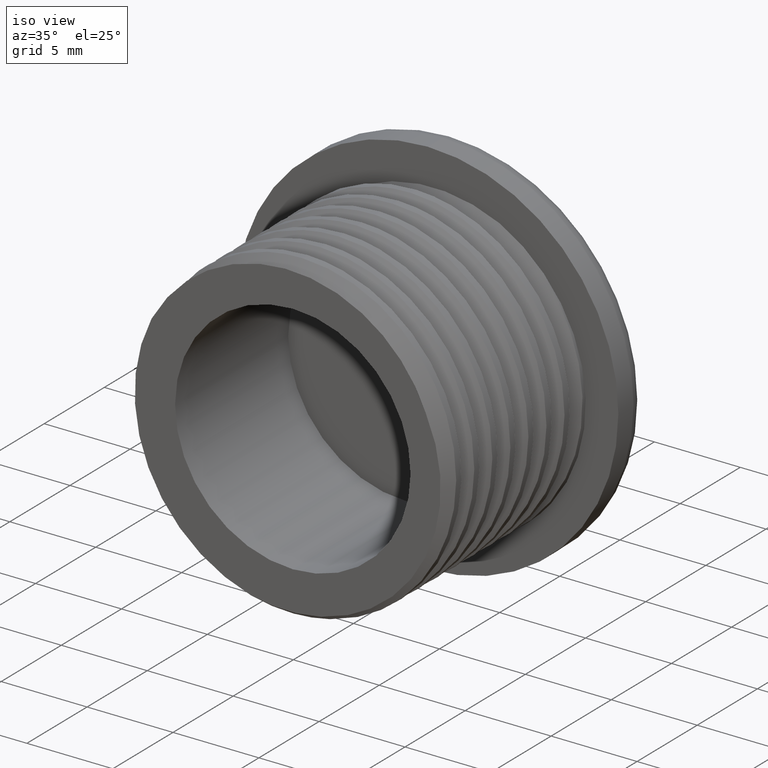
[diagram: clean part render]
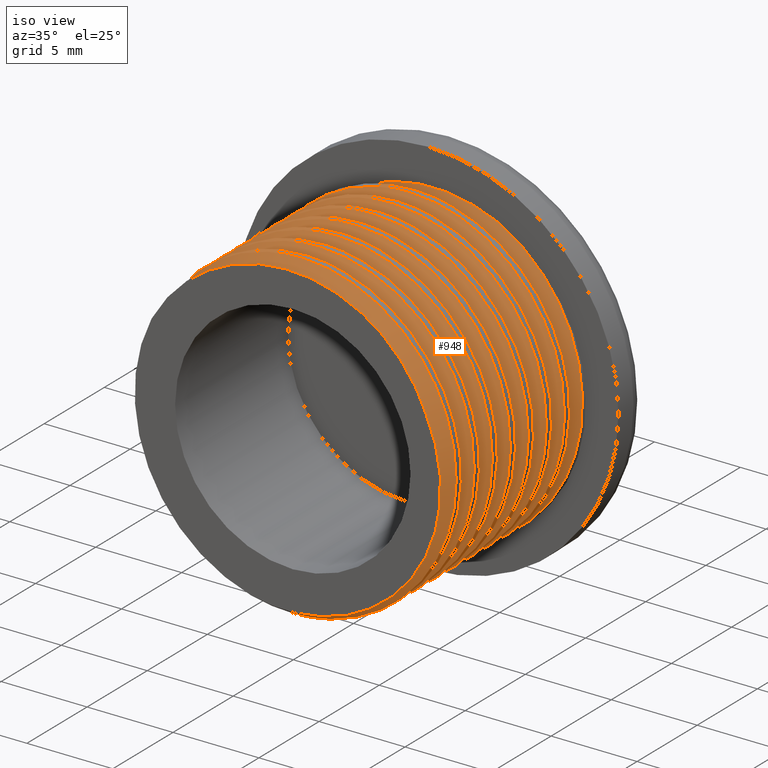
[diagram: same view with one face highlighted and labeled with its STEP entity id]
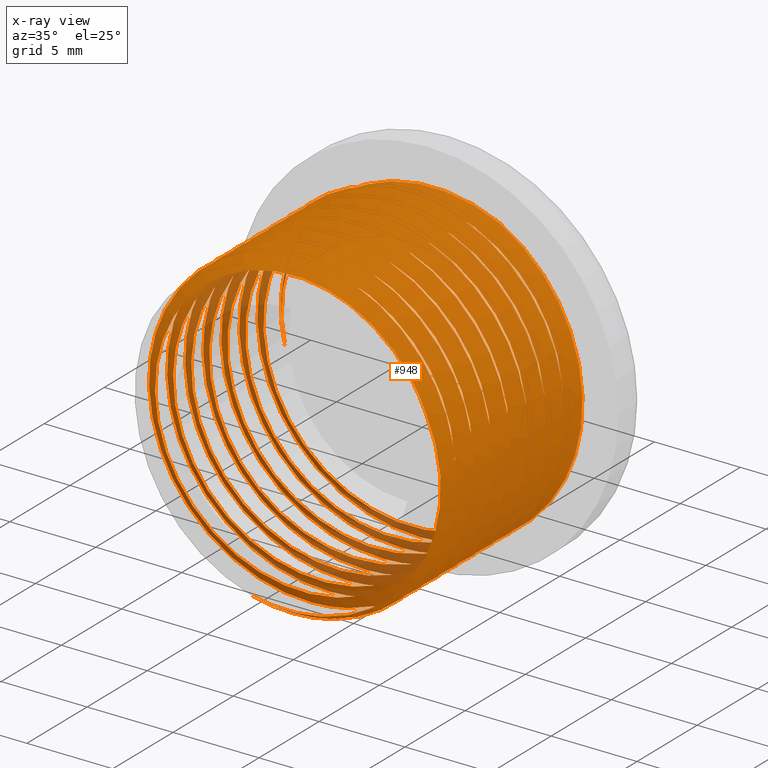
[diagram: x-ray of the same camera — body ghosted, the highlighted face saturated]
A machine part, iso view. The second image highlights one B-rep face of the part: STEP entity #948.
The next image is the same camera in x-ray: the body ghosted, the highlighted face saturated — about 10% of this face is hidden behind the body in this view.
In plain terms, the highlighted face is a freeform B-spline surface patch.
Its self-contained STEP definition (entity closure, byte-faithful):
#13 = B_SPLINE_CURVE_WITH_KNOTS ( 'NONE', 3,
 ( #2569, #2570, #2574, #2591, #2597, #2564, #2572, #2576, #2584, #2626, #2617, #2602, #2621, #2615, #2627, #2603, #2618, #2614, #2622, #2620, #2612, #2604, #2623, #2605, #2619, #2606, #2607, #2611, #2613, #2624 ),
 .UNSPECIFIED., .F., .F.,
 ( 4, 2, 2, 2, 2, 2, 2, 2, 2, 2, 2, 2, 2, 2, 4 ),
 ( 0.0000000000000000000, 0.001249024481804113400, 0.002498048963608227200, 0.004996097927216455200, 0.007494146890824682400, 0.008743171372628796800, 0.009992195854432910400, 0.01124122033623702400, 0.01249024481804113800, 0.01373926929984524900, 0.01498829378164936500, 0.01623731826345348200, 0.01748634274525759700, 0.01873536722706171900, 0.01998439170886583500 ),
 .UNSPECIFIED. ) ;
#23 = B_SPLINE_CURVE_WITH_KNOTS ( 'NONE', 3,
 ( #2582, #2583, #2616, #2625, #2609, #2610, #2629, #2628, #2630, #2631, #2634, #2637, #2638, #2632, #2640, #2639, #2633, #2635, #2636, #2641, #2642, #2654, #2648, #2643, #2656, #2649, #2644, #2655, #2645, #2653, #2646, #2651 ),
 .UNSPECIFIED., .F., .F.,
 ( 4, 2, 2, 2, 2, 2, 2, 2, 2, 2, 2, 2, 2, 2, 2, 4 ),
 ( 0.001395362550991325300, 0.002644505119825085700, 0.003893647688658846600, 0.005142790257492606600, 0.006391932826326367900, 0.007641075395160127500, 0.008890217963993888800, 0.01013936053282765000, 0.01138850310166140600, 0.01388678823932892500, 0.01513593080816268800, 0.01638507337699644400, 0.01763421594583020800, 0.01888335851466396700, 0.02013250108349773000, 0.02138164365233148600 ),
 .UNSPECIFIED. ) ;
#25 = CARTESIAN_POINT ( 'NONE',  ( -3.506262277083559200, 3.889204256561428400, -8.464865942572302500 ) ) ;
#26 = CARTESIAN_POINT ( 'NONE',  ( -8.464865942572302500, 3.701704256561428400, -3.506262277083562300 ) ) ;
#27 = CARTESIAN_POINT ( 'NONE',  ( -5.985564109827929100, 3.795454256561428400, -5.985564109827930000 ) ) ;
#28 = CARTESIAN_POINT ( 'NONE',  ( -8.464865942572304300, 3.607954256561428400, -1.036647098178261500E-015 ) ) ;
#29 = CARTESIAN_POINT ( 'NONE',  ( -8.464865942572302500, 3.514204256561429300, 3.506262277083557900 ) ) ;
#30 = CARTESIAN_POINT ( 'NONE',  ( -5.985564109827930900, 3.420454256561428400, 5.985564109827929100 ) ) ;
#31 = CARTESIAN_POINT ( 'NONE',  ( -3.506262277083564500, 3.326704256561428400, 8.464865942572302500 ) ) ;
#32 = CARTESIAN_POINT ( 'NONE',  ( -1.554970647267391300E-015, 3.232954256561428400, 8.464865942572304300 ) ) ;
#33 = CARTESIAN_POINT ( 'NONE',  ( 3.506262277083562300, 3.139204256561428400, 8.464865942572302500 ) ) ;
#359 = CARTESIAN_POINT ( 'NONE',  ( 6.505382386916235000, 6.583718227850094500, 6.505382386916237700 ) ) ;
#360 = CARTESIAN_POINT ( 'NONE',  ( 9.200000000000002800, 6.489968227850093600, 3.810764773832481000 ) ) ;
#361 = CARTESIAN_POINT ( 'NONE',  ( 9.199999999999999300, 6.396218227850093600, 2.253350110431129300E-015 ) ) ;
#362 = CARTESIAN_POINT ( 'NONE',  ( 9.200000000000004600, 6.302468227850093600, -3.810764773832473900 ) ) ;
#363 = CARTESIAN_POINT ( 'NONE',  ( -1.690012582823347300E-015, 8.271218227850095400, 9.199999999999999300 ) ) ;
#366 = CARTESIAN_POINT ( 'NONE',  ( -1.690012582823346900E-015, 6.771218227850093600, 9.199999999999995700 ) ) ;
#370 = CARTESIAN_POINT ( 'NONE',  ( 3.810764773832476100, 6.677468227850096300, 9.200000000000002800 ) ) ;
#372 = CARTESIAN_POINT ( 'NONE',  ( 3.810764773832480600, 7.614968227850107000, -9.200000000000020600 ) ) ;
#373 = CARTESIAN_POINT ( 'NONE',  ( 6.505382386916236800, 6.208718227850092800, -6.505382386916235900 ) ) ;
#374 = CARTESIAN_POINT ( 'NONE',  ( 3.810764773832482800, 8.177468227850106100, 9.200000000000018800 ) ) ;
#375 = CARTESIAN_POINT ( 'NONE',  ( 6.505382386916246600, 7.708718227850106100, -6.505382386916245700 ) ) ;
#376 = CARTESIAN_POINT ( 'NONE',  ( 5.633375276077823100E-016, 7.521218227850093600, -9.199999999999995700 ) ) ;
#377 = CARTESIAN_POINT ( 'NONE',  ( 3.810764773843688500, 6.114968227850484400, -9.199999999988790500 ) ) ;
#378 = CARTESIAN_POINT ( 'NONE',  ( 2.707411833383836200E-011, 6.021218227850759800, -9.199999999999995700 ) ) ;
#379 = CARTESIAN_POINT ( 'NONE',  ( 9.200000000000013500, 7.896218227850105200, 2.253350110431133200E-015 ) ) ;
#380 = CARTESIAN_POINT ( 'NONE',  ( 9.200000000000018800, 7.989968227850105200, 3.810764773832487700 ) ) ;
#381 = CARTESIAN_POINT ( 'NONE',  ( 6.505382386916244800, 8.083718227850106100, 6.505382386916247500 ) ) ;
#382 = CARTESIAN_POINT ( 'NONE',  ( 9.200000000000020600, 7.802468227850106100, -3.810764773832480600 ) ) ;
#386 = CARTESIAN_POINT ( 'NONE',  ( 3.009948960421700600E-011, 1.521218227850835900, -9.200000000000002800 ) ) ;
#387 = CARTESIAN_POINT ( 'NONE',  ( 3.810764773823920300, 3.677468227850392100, 9.200000000008559600 ) ) ;
#388 = CARTESIAN_POINT ( 'NONE',  ( 9.200000000000002800, 3.489968227850095900, 3.810764773832481000 ) ) ;
#389 = CARTESIAN_POINT ( 'NONE',  ( 6.505382386916237700, 3.208718227850094500, -6.505382386916236800 ) ) ;
#390 = CARTESIAN_POINT ( 'NONE',  ( 9.199999999999997500, 3.396218227850095400, 2.253350110431130000E-015 ) ) ;
#391 = CARTESIAN_POINT ( 'NONE',  ( -2.065864361683507600E-011, 3.771218227850602600, 9.199999999999995700 ) ) ;
#392 = CARTESIAN_POINT ( 'NONE',  ( 6.505382386916235000, 3.583718227850095000, 6.505382386916238600 ) ) ;
#394 = CARTESIAN_POINT ( 'NONE',  ( 9.200000000000004600, 3.302468227850094500, -3.810764773832473900 ) ) ;
#396 = CARTESIAN_POINT ( 'NONE',  ( 3.810764773832462800, 3.114968227850094500, -9.200000000000018800 ) ) ;
#410 = CARTESIAN_POINT ( 'NONE',  ( 5.633375276077827100E-016, 3.021218227850095000, -9.200000000000002800 ) ) ;
#416 = CARTESIAN_POINT ( 'NONE',  ( 5.633375276077824100E-016, 10.52121822785009900, -9.199999999999999300 ) ) ;
#417 = CARTESIAN_POINT ( 'NONE',  ( -1.690012582823347300E-015, 9.771218227850095400, 9.199999999999995700 ) ) ;
#418 = CARTESIAN_POINT ( 'NONE',  ( -6.505382386916240400, 9.958718227850097200, 6.505382386916238600 ) ) ;
#421 = CARTESIAN_POINT ( 'NONE',  ( -3.810764773832475200, 10.42746822785010300, -9.200000000000008200 ) ) ;
#422 = CARTESIAN_POINT ( 'NONE',  ( -9.200000000000008200, 10.23996822785009700, -3.810764773832477000 ) ) ;
#424 = CARTESIAN_POINT ( 'NONE',  ( -9.200000000000008200, 10.05246822785010100, 3.810764773832474800 ) ) ;
#425 = CARTESIAN_POINT ( 'NONE',  ( -3.810764773832481900, 9.864968227850097200, 9.200000000000006400 ) ) ;
#426 = CARTESIAN_POINT ( 'NONE',  ( -6.505382386916238600, 10.33371822785009700, -6.505382386916239500 ) ) ;
#427 = CARTESIAN_POINT ( 'NONE',  ( -9.200000000000002800, 10.14621822785009700, -1.126675055215565200E-015 ) ) ;
#428 = CARTESIAN_POINT ( 'NONE',  ( 5.633375276077823100E-016, 7.521218227850093600, -9.199999999999995700 ) ) ;
#429 = CARTESIAN_POINT ( 'NONE',  ( -9.200000000000004600, 7.052468227850092800, 3.810764773832473500 ) ) ;
#430 = CARTESIAN_POINT ( 'NONE',  ( -6.505382386916237700, 6.958718227850092800, 6.505382386916235900 ) ) ;
#431 = CARTESIAN_POINT ( 'NONE',  ( -9.200000000000004600, 7.239968227850094500, -3.810764773832475200 ) ) ;
#432 = CARTESIAN_POINT ( 'NONE',  ( -3.810764773832473900, 7.427468227850093600, -9.200000000000004600 ) ) ;
#433 = CARTESIAN_POINT ( 'NONE',  ( -9.199999999999999300, 7.146218227850095400, -1.126675055215564800E-015 ) ) ;
#434 = CARTESIAN_POINT ( 'NONE',  ( -3.810764773832480100, 6.864968227850093600, 9.200000000000002800 ) ) ;
#435 = CARTESIAN_POINT ( 'NONE',  ( -1.690012582823347300E-015, 2.271218227850093600, 9.199999999999999300 ) ) ;
#436 = CARTESIAN_POINT ( 'NONE',  ( -6.505382386916235900, 7.333718227850093600, -6.505382386916236800 ) ) ;
#440 = CARTESIAN_POINT ( 'NONE',  ( -1.690012582823346900E-015, 6.771218227850093600, 9.199999999999995700 ) ) ;
#441 = CARTESIAN_POINT ( 'NONE',  ( 3.810764773832485900, 2.177468227850110500, 9.200000000000025900 ) ) ;
#442 = CARTESIAN_POINT ( 'NONE',  ( 9.200000000000025900, 1.989968227850109000, 3.810764773832490300 ) ) ;
#443 = CARTESIAN_POINT ( 'NONE',  ( 6.505382386916250100, 2.083718227850110100, 6.505382386916252800 ) ) ;
#444 = CARTESIAN_POINT ( 'NONE',  ( 9.200000000000020600, 1.896218227850109600, 2.253350110431135200E-015 ) ) ;
#445 = CARTESIAN_POINT ( 'NONE',  ( 9.200000000000027700, 1.802468227850109400, -3.810764773832482800 ) ) ;
#446 = CARTESIAN_POINT ( 'NONE',  ( 6.505382386916251900, 1.708718227850110100, -6.505382386916251000 ) ) ;
#468 = ORIENTED_EDGE ( 'NONE', *, *, #883, .T. ) ;
#470 = ORIENTED_EDGE ( 'NONE', *, *, #870, .F. ) ;
#500 = ORIENTED_EDGE ( 'NONE', *, *, #869, .F. ) ;
#515 = ORIENTED_EDGE ( 'NONE', *, *, #852, .F. ) ;
#519 = ORIENTED_EDGE ( 'NONE', *, *, #910, .F. ) ;
#531 = ORIENTED_EDGE ( 'NONE', *, *, #835, .F. ) ;
#532 = ORIENTED_EDGE ( 'NONE', *, *, #874, .F. ) ;
#537 = ORIENTED_EDGE ( 'NONE', *, *, #862, .F. ) ;
#538 = ORIENTED_EDGE ( 'NONE', *, *, #845, .F. ) ;
#549 = ORIENTED_EDGE ( 'NONE', *, *, #884, .T. ) ;
#551 = ORIENTED_EDGE ( 'NONE', *, *, #843, .F. ) ;
#552 = ORIENTED_EDGE ( 'NONE', *, *, #868, .F. ) ;
#554 = ORIENTED_EDGE ( 'NONE', *, *, #861, .F. ) ;
#560 = ORIENTED_EDGE ( 'NONE', *, *, #872, .F. ) ;
#568 = ORIENTED_EDGE ( 'NONE', *, *, #914, .T. ) ;
#570 = ORIENTED_EDGE ( 'NONE', *, *, #865, .F. ) ;
#581 = ORIENTED_EDGE ( 'NONE', *, *, #851, .F. ) ;
#595 = ORIENTED_EDGE ( 'NONE', *, *, #842, .F. ) ;
#604 = ORIENTED_EDGE ( 'NONE', *, *, #850, .F. ) ;
#650 = EDGE_LOOP ( 'NONE', ( #519, #549, #568, #468, #532, #470, #500, #515, #537, #538, #554, #552, #560, #595, #581, #551, #570, #531, #604 ) ) ;
#672 = VERTEX_POINT ( 'NONE', #734 ) ;
#675 = VERTEX_POINT ( 'NONE', #739 ) ;
#686 = VERTEX_POINT ( 'NONE', #733 ) ;
#689 = VERTEX_POINT ( 'NONE', #764 ) ;
#691 = VERTEX_POINT ( 'NONE', #765 ) ;
#694 = VERTEX_POINT ( 'NONE', #770 ) ;
#697 = VERTEX_POINT ( 'NONE', #768 ) ;
#698 = VERTEX_POINT ( 'NONE', #756 ) ;
#699 = VERTEX_POINT ( 'NONE', #767 ) ;
#704 = VERTEX_POINT ( 'NONE', #761 ) ;
#709 = VERTEX_POINT ( 'NONE', #763 ) ;
#710 = VERTEX_POINT ( 'NONE', #754 ) ;
#711 = VERTEX_POINT ( 'NONE', #759 ) ;
#712 = VERTEX_POINT ( 'NONE', #760 ) ;
#714 = VERTEX_POINT ( 'NONE', #802 ) ;
#715 = VERTEX_POINT ( 'NONE', #792 ) ;
#724 = VERTEX_POINT ( 'NONE', #800 ) ;
#727 = VERTEX_POINT ( 'NONE', #811 ) ;
#733 = CARTESIAN_POINT ( 'NONE',  ( 4.186545021059163000, 11.15795425656143000, 8.192242720198464700 ) ) ;
#734 = CARTESIAN_POINT ( 'NONE',  ( 3.009948960421700600E-011, 1.521218227850835900, -9.200000000000002800 ) ) ;
#738 = VERTEX_POINT ( 'NONE', #775 ) ;
#739 = CARTESIAN_POINT ( 'NONE',  ( 7.735327496393755300, -0.04204574343701225600, 3.437828376934367800 ) ) ;
#754 = CARTESIAN_POINT ( 'NONE',  ( 2.707411833383836200E-011, 6.021218227850759800, -9.199999999999995700 ) ) ;
#756 = CARTESIAN_POINT ( 'NONE',  ( 5.633375276077824100E-016, 10.52121822785009900, -9.199999999999999300 ) ) ;
#759 = CARTESIAN_POINT ( 'NONE',  ( -1.690012582823347500E-015, 0.7712182278500938600, 9.199999999999999300 ) ) ;
#760 = CARTESIAN_POINT ( 'NONE',  ( -2.065864361683507600E-011, 3.771218227850602600, 9.199999999999995700 ) ) ;
#761 = CARTESIAN_POINT ( 'NONE',  ( -8.273300490279973800, 11.15795425656143000, -1.790657539356323100 ) ) ;
#763 = CARTESIAN_POINT ( 'NONE',  ( -1.690012582823346900E-015, 6.771218227850093600, 9.199999999999995700 ) ) ;
#764 = CARTESIAN_POINT ( 'NONE',  ( 5.633375276077828100E-016, 0.02121822785009670800, -9.200000000000004600 ) ) ;
#765 = CARTESIAN_POINT ( 'NONE',  ( 5.633375276077827100E-016, 3.021218227850095000, -9.200000000000002800 ) ) ;
#767 = CARTESIAN_POINT ( 'NONE',  ( -1.690012582823347300E-015, 9.771218227850095400, 9.199999999999995700 ) ) ;
#768 = CARTESIAN_POINT ( 'NONE',  ( 5.633375276077824100E-016, 9.021218227850093600, -9.199999999999999300 ) ) ;
#770 = CARTESIAN_POINT ( 'NONE',  ( -2.435596448908169200, -0.04204574343857210600, -8.871745597009274700 ) ) ;
#775 = CARTESIAN_POINT ( 'NONE',  ( 5.633375276077823100E-016, 7.521218227850093600, -9.199999999999995700 ) ) ;
#792 = CARTESIAN_POINT ( 'NONE',  ( 1.480152197084022900E-011, 5.271218227849729500, 9.199999999999999300 ) ) ;
#795 = CARTESIAN_POINT ( 'NONE',  ( -1.690012582823347300E-015, 9.771218227850095400, 9.199999999999995700 ) ) ;
#800 = CARTESIAN_POINT ( 'NONE',  ( -1.690012582823347300E-015, 8.271218227850095400, 9.199999999999999300 ) ) ;
#802 = CARTESIAN_POINT ( 'NONE',  ( 5.633375276077823100E-016, 4.521218227850094500, -9.199999999999999300 ) ) ;
#811 = CARTESIAN_POINT ( 'NONE',  ( -1.690012582823347300E-015, 2.271218227850093600, 9.199999999999999300 ) ) ;
#817 = CARTESIAN_POINT ( 'NONE',  ( 6.505382386916235000, 9.583718227850093600, 6.505382386916238600 ) ) ;
#819 = CARTESIAN_POINT ( 'NONE',  ( 3.810764773832476100, 9.677468227850097200, 9.200000000000002800 ) ) ;
#821 = CARTESIAN_POINT ( 'NONE',  ( 9.200000000000002800, 9.489968227850093600, 3.810764773832481000 ) ) ;
#822 = CARTESIAN_POINT ( 'NONE',  ( 9.200000000000002800, 9.302468227850097200, -3.810764773832473900 ) ) ;
#823 = CARTESIAN_POINT ( 'NONE',  ( 3.810764773832474400, 9.114968227850095400, -9.200000000000002800 ) ) ;
#824 = CARTESIAN_POINT ( 'NONE',  ( 5.633375276077824100E-016, 9.021218227850093600, -9.199999999999999300 ) ) ;
#825 = CARTESIAN_POINT ( 'NONE',  ( 9.199999999999997500, 9.396218227850095400, 2.253350110431129600E-015 ) ) ;
#826 = CARTESIAN_POINT ( 'NONE',  ( 6.505382386916237700, 9.208718227850093600, -6.505382386916236800 ) ) ;
#829 = CARTESIAN_POINT ( 'NONE',  ( 3.810764773844962100, 1.614968227850543500, -9.199999999987548800 ) ) ;
#835 = EDGE_CURVE ( 'NONE', #699, #697, #2710, .T. ) ;
#842 = EDGE_CURVE ( 'NONE', #709, #710, #2706, .T. ) ;
#843 = EDGE_CURVE ( 'NONE', #724, #738, #2716, .T. ) ;
#845 = EDGE_CURVE ( 'NONE', #712, #691, #2707, .T. ) ;
#850 = EDGE_CURVE ( 'NONE', #698, #699, #2720, .T. ) ;
#851 = EDGE_CURVE ( 'NONE', #738, #709, #2713, .T. ) ;
#852 = EDGE_CURVE ( 'NONE', #727, #672, #2722, .T. ) ;
#861 = EDGE_CURVE ( 'NONE', #714, #712, #2719, .T. ) ;
#862 = EDGE_CURVE ( 'NONE', #691, #727, #2699, .T. ) ;
#865 = EDGE_CURVE ( 'NONE', #697, #724, #2697, .T. ) ;
#868 = EDGE_CURVE ( 'NONE', #715, #714, #2704, .T. ) ;
#869 = EDGE_CURVE ( 'NONE', #672, #711, #2698, .T. ) ;
#870 = EDGE_CURVE ( 'NONE', #711, #689, #2700, .T. ) ;
#872 = EDGE_CURVE ( 'NONE', #710, #715, #2705, .T. ) ;
#874 = EDGE_CURVE ( 'NONE', #689, #694, #2732, .T. ) ;
#883 = EDGE_CURVE ( 'NONE', #675, #694, #13, .T. ) ;
#884 = EDGE_CURVE ( 'NONE', #686, #704, #23, .T. ) ;
#910 = EDGE_CURVE ( 'NONE', #686, #698, #2729, .T. ) ;
#914 = EDGE_CURVE ( 'NONE', #704, #675, #2734, .T. ) ;
#948 = ADVANCED_FACE ( 'NONE', ( #1658 ), #2724, .F. ) ;
#994 = CARTESIAN_POINT ( 'NONE',  ( 6.540737725975562400, -0.8796718527855313900, 6.540737725975565900 ) ) ;
#995 = CARTESIAN_POINT ( 'NONE',  ( 9.250000000000005300, -0.9734218527855316200, 3.831475451951135800 ) ) ;
#996 = CARTESIAN_POINT ( 'NONE',  ( 9.250000000000000000, -1.067171852785531400, 2.265596578422603400E-015 ) ) ;
#1071 = CARTESIAN_POINT ( 'NONE',  ( 9.250000000000005300, 5.026578147214467900, 3.831475451951135800 ) ) ;
#1072 = CARTESIAN_POINT ( 'NONE',  ( 6.540737725975562400, 5.120328147214470600, 6.540737725975565900 ) ) ;
#1073 = CARTESIAN_POINT ( 'NONE',  ( 3.831475451951131400, 5.214078147214468800, 9.250000000000005300 ) ) ;
#1074 = CARTESIAN_POINT ( 'NONE',  ( -1.699197433816952900E-015, 5.307828147214468800, 9.250000000000000000 ) ) ;
#1075 = CARTESIAN_POINT ( 'NONE',  ( 9.250000000000000000, 4.932828147214468800, 2.265596578422603400E-015 ) ) ;
#1076 = CARTESIAN_POINT ( 'NONE',  ( -3.831475451951135800, 5.401578147214468800, 9.250000000000005300 ) ) ;
#1077 = CARTESIAN_POINT ( 'NONE',  ( 5.663991446056508500E-016, 6.057828147214468800, -9.250000000000000000 ) ) ;
#1078 = CARTESIAN_POINT ( 'NONE',  ( 3.831475451951129600, 6.151578147214468800, -9.250000000000007100 ) ) ;
#1079 = CARTESIAN_POINT ( 'NONE',  ( 9.250000000000000000, 6.432828147214468800, 2.265596578422603400E-015 ) ) ;
#1080 = CARTESIAN_POINT ( 'NONE',  ( 9.250000000000005300, 6.526578147214468800, 3.831475451951135800 ) ) ;
#1081 = CARTESIAN_POINT ( 'NONE',  ( 6.540737725975565000, 6.245328147214468800, -6.540737725975564100 ) ) ;
#1082 = CARTESIAN_POINT ( 'NONE',  ( 6.540737725975562400, 6.620328147214468800, 6.540737725975565900 ) ) ;
#1083 = CARTESIAN_POINT ( 'NONE',  ( 3.831475451951131400, 6.714078147214471500, 9.250000000000005300 ) ) ;
#1084 = CARTESIAN_POINT ( 'NONE',  ( -1.699197433816952900E-015, 6.807828147214468800, 9.250000000000000000 ) ) ;
#1085 = CARTESIAN_POINT ( 'NONE',  ( -3.831475451951135800, 6.901578147214468800, 9.250000000000005300 ) ) ;
#1086 = CARTESIAN_POINT ( 'NONE',  ( 9.250000000000007100, 6.339078147214468800, -3.831475451951129200 ) ) ;
#1087 = CARTESIAN_POINT ( 'NONE',  ( -9.250000000000007100, 5.589078147214469700, 3.831475451951129200 ) ) ;
#1088 = CARTESIAN_POINT ( 'NONE',  ( -6.540737725975565900, 5.495328147214468800, 6.540737725975564100 ) ) ;
#1089 = CARTESIAN_POINT ( 'NONE',  ( -9.250000000000000000, 5.682828147214468800, -1.132798289211301700E-015 ) ) ;
#1090 = CARTESIAN_POINT ( 'NONE',  ( -9.250000000000007100, 5.776578147214471500, -3.831475451951130500 ) ) ;
#1091 = CARTESIAN_POINT ( 'NONE',  ( -6.540737725975564100, 5.870328147214468800, -6.540737725975565000 ) ) ;
#1092 = CARTESIAN_POINT ( 'NONE',  ( -3.831475451951129200, 5.964078147214467900, -9.250000000000007100 ) ) ;
#1093 = CARTESIAN_POINT ( 'NONE',  ( 5.663991446056508500E-016, 7.557828147214468800, -9.250000000000000000 ) ) ;
#1094 = CARTESIAN_POINT ( 'NONE',  ( 3.831475451951129600, 7.651578147214471500, -9.250000000000007100 ) ) ;
#1095 = CARTESIAN_POINT ( 'NONE',  ( -9.250000000000007100, 7.089078147214467900, 3.831475451951129200 ) ) ;
#1096 = CARTESIAN_POINT ( 'NONE',  ( 6.540737725975565000, 7.745328147214468800, -6.540737725975564100 ) ) ;
#1097 = CARTESIAN_POINT ( 'NONE',  ( -6.540737725975565900, 6.995328147214467900, 6.540737725975564100 ) ) ;
#1098 = CARTESIAN_POINT ( 'NONE',  ( -6.540737725975564100, 7.370328147214468800, -6.540737725975565000 ) ) ;
#1099 = CARTESIAN_POINT ( 'NONE',  ( 9.250000000000007100, 7.839078147214468800, -3.831475451951129200 ) ) ;
#1100 = CARTESIAN_POINT ( 'NONE',  ( -9.250000000000000000, 7.182828147214470600, -1.132798289211301700E-015 ) ) ;
#1101 = CARTESIAN_POINT ( 'NONE',  ( -9.250000000000007100, 7.276578147214468800, -3.831475451951130500 ) ) ;
#1102 = CARTESIAN_POINT ( 'NONE',  ( -3.831475451951129200, 7.464078147214468800, -9.250000000000007100 ) ) ;
#1103 = CARTESIAN_POINT ( 'NONE',  ( 6.540737725975562400, 8.120328147214468800, 6.540737725975565900 ) ) ;
#1104 = CARTESIAN_POINT ( 'NONE',  ( 9.250000000000005300, 8.026578147214468800, 3.831475451951135800 ) ) ;
#1105 = CARTESIAN_POINT ( 'NONE',  ( -9.250000000000007100, 8.589078147214470600, 3.831475451951129200 ) ) ;
#1106 = CARTESIAN_POINT ( 'NONE',  ( 3.831475451951129600, 9.151578147214470600, -9.250000000000007100 ) ) ;
#1107 = CARTESIAN_POINT ( 'NONE',  ( 9.250000000000000000, 7.932828147214468800, 2.265596578422603400E-015 ) ) ;
#1108 = CARTESIAN_POINT ( 'NONE',  ( -9.250000000000007100, 8.776578147214468800, -3.831475451951130500 ) ) ;
#1109 = CARTESIAN_POINT ( 'NONE',  ( -3.831475451951129200, 8.964078147214472400, -9.250000000000007100 ) ) ;
#1110 = CARTESIAN_POINT ( 'NONE',  ( 6.540737725975565000, 9.245328147214470600, -6.540737725975564100 ) ) ;
#1111 = CARTESIAN_POINT ( 'NONE',  ( -1.699197433816952900E-015, 8.307828147214468800, 9.250000000000000000 ) ) ;
#1112 = CARTESIAN_POINT ( 'NONE',  ( 3.831475451951131400, 8.214078147214467100, 9.250000000000005300 ) ) ;
#1113 = CARTESIAN_POINT ( 'NONE',  ( -3.831475451951135800, 8.401578147214474200, 9.250000000000005300 ) ) ;
#1114 = CARTESIAN_POINT ( 'NONE',  ( -6.540737725975565900, 8.495328147214468800, 6.540737725975564100 ) ) ;
#1115 = CARTESIAN_POINT ( 'NONE',  ( -9.250000000000000000, 8.682828147214474200, -1.132798289211301700E-015 ) ) ;
#1116 = CARTESIAN_POINT ( 'NONE',  ( -6.540737725975564100, 8.870328147214470600, -6.540737725975565000 ) ) ;
#1117 = CARTESIAN_POINT ( 'NONE',  ( 5.663991446056508500E-016, 9.057828147214470600, -9.250000000000000000 ) ) ;
#1118 = CARTESIAN_POINT ( 'NONE',  ( -3.831475451951129200, 10.46407814721447400, -9.250000000000007100 ) ) ;
#1119 = CARTESIAN_POINT ( 'NONE',  ( 9.250000000000005300, 9.526578147214468800, 3.831475451951135800 ) ) ;
#1120 = CARTESIAN_POINT ( 'NONE',  ( -9.250000000000000000, 10.18282814721446900, -1.132798289211301700E-015 ) ) ;
#1121 = CARTESIAN_POINT ( 'NONE',  ( 9.250000000000005300, 11.02657814721447100, 3.831475451951135800 ) ) ;
#1122 = CARTESIAN_POINT ( 'NONE',  ( -6.540737725975565900, 9.995328147214468800, 6.540737725975564100 ) ) ;
#1123 = CARTESIAN_POINT ( 'NONE',  ( -9.250000000000007100, 10.08907814721447200, 3.831475451951129200 ) ) ;
#1124 = CARTESIAN_POINT ( 'NONE',  ( 3.831475451951129600, 10.65157814721446900, -9.250000000000007100 ) ) ;
#1125 = CARTESIAN_POINT ( 'NONE',  ( -6.540737725975564100, 10.37032814721446900, -6.540737725975565000 ) ) ;
#1126 = CARTESIAN_POINT ( 'NONE',  ( 6.540737725975562400, 11.12032814721447100, 6.540737725975565900 ) ) ;
#1127 = CARTESIAN_POINT ( 'NONE',  ( -9.250000000000007100, 10.27657814721446900, -3.831475451951130500 ) ) ;
#1128 = CARTESIAN_POINT ( 'NONE',  ( -1.699197433816952900E-015, 9.807828147214468800, 9.250000000000000000 ) ) ;
#1129 = CARTESIAN_POINT ( 'NONE',  ( -3.831475451951135800, 9.901578147214468800, 9.250000000000005300 ) ) ;
#1130 = CARTESIAN_POINT ( 'NONE',  ( 9.250000000000007100, 10.83907814721447800, -3.831475451951129200 ) ) ;
#1131 = CARTESIAN_POINT ( 'NONE',  ( 9.250000000000000000, 9.432828147214470600, 2.265596578422603400E-015 ) ) ;
#1132 = CARTESIAN_POINT ( 'NONE',  ( 6.540737725975562400, 9.620328147214468800, 6.540737725975565900 ) ) ;
#1133 = CARTESIAN_POINT ( 'NONE',  ( 3.831475451951131400, 11.21407814721447400, 9.250000000000005300 ) ) ;
#1134 = CARTESIAN_POINT ( 'NONE',  ( -1.699197433816952900E-015, 11.30782814721447100, 9.250000000000000000 ) ) ;
#1135 = CARTESIAN_POINT ( 'NONE',  ( 5.663991446056508500E-016, 10.55782814721447200, -9.250000000000000000 ) ) ;
#1136 = CARTESIAN_POINT ( 'NONE',  ( -3.831475451951135800, 11.40157814721447100, 9.250000000000005300 ) ) ;
#1137 = CARTESIAN_POINT ( 'NONE',  ( 6.540737725975565000, 10.74532814721447400, -6.540737725975564100 ) ) ;
#1138 = CARTESIAN_POINT ( 'NONE',  ( -6.540737725975565900, 11.49532814721446900, 6.540737725975564100 ) ) ;
#1139 = CARTESIAN_POINT ( 'NONE',  ( 9.250000000000000000, 10.93282814721447100, 2.265596578422603400E-015 ) ) ;
#1140 = CARTESIAN_POINT ( 'NONE',  ( -9.250000000000007100, 11.58907814721446900, 3.831475451951129200 ) ) ;
#1141 = CARTESIAN_POINT ( 'NONE',  ( 9.250000000000007100, 9.339078147214470600, -3.831475451951129200 ) ) ;
#1142 = CARTESIAN_POINT ( 'NONE',  ( 3.831475451951131400, 9.714078147214470600, 9.250000000000005300 ) ) ;
#1143 = CARTESIAN_POINT ( 'NONE',  ( 3.831475451951129600, 12.15157814721447100, -9.250000000000007100 ) ) ;
#1144 = CARTESIAN_POINT ( 'NONE',  ( 5.183235490891307700E-016, -0.5170457434385714600, -8.464865942572304300 ) ) ;
#1145 = CARTESIAN_POINT ( 'NONE',  ( -6.540737725975564100, 11.87032814721446900, -6.540737725975565000 ) ) ;
#1146 = CARTESIAN_POINT ( 'NONE',  ( 3.506262277083560100, -0.4232957434385715700, -8.464865942572300700 ) ) ;
#1147 = CARTESIAN_POINT ( 'NONE',  ( 8.464865942572300700, -0.2357957434385714600, -3.506262277083559600 ) ) ;
#1148 = CARTESIAN_POINT ( 'NONE',  ( 8.464865942572304300, -1.642045743438571600, 2.073294196356523100E-015 ) ) ;
#1149 = CARTESIAN_POINT ( 'NONE',  ( -3.506262277083559200, -0.6107957434385714600, -8.464865942572300700 ) ) ;
#1150 = CARTESIAN_POINT ( 'NONE',  ( 8.464865942572300700, -0.04829574343857148700, 3.506262277083566700 ) ) ;
#1151 = CARTESIAN_POINT ( 'NONE',  ( 5.663991446056508500E-016, 12.05782814721446900, -9.250000000000000000 ) ) ;
#1152 = CARTESIAN_POINT ( 'NONE',  ( 5.985564109827928200, 0.04545425656142853400, 5.985564109827930900 ) ) ;
#1153 = CARTESIAN_POINT ( 'NONE',  ( 6.540737725975565000, 12.24532814721446900, -6.540737725975564100 ) ) ;
#1154 = CARTESIAN_POINT ( 'NONE',  ( -5.985564109827929100, -0.7045457434385715700, -5.985564109827930000 ) ) ;
#1155 = CARTESIAN_POINT ( 'NONE',  ( 9.250000000000007100, 12.33907814721447100, -3.831475451951129200 ) ) ;
#1156 = CARTESIAN_POINT ( 'NONE',  ( 8.464865942572300700, -1.548295743438571300, 3.506262277083566700 ) ) ;
#1157 = CARTESIAN_POINT ( 'NONE',  ( 5.985564109827928200, -1.454545743438571600, 5.985564109827930900 ) ) ;
#1158 = CARTESIAN_POINT ( 'NONE',  ( -5.985564109827930900, -1.079545743438571300, 5.985564109827929100 ) ) ;
#1159 = CARTESIAN_POINT ( 'NONE',  ( 5.985564109827930000, -0.3295457434385716300, -5.985564109827929100 ) ) ;
#1160 = CARTESIAN_POINT ( 'NONE',  ( 8.464865942572304300, -0.1420457434385714900, 2.073294196356523100E-015 ) ) ;
#1161 = CARTESIAN_POINT ( 'NONE',  ( 3.506262277083562300, 0.1392042565614286000, 8.464865942572300700 ) ) ;
#1162 = CARTESIAN_POINT ( 'NONE',  ( -3.506262277083564500, -1.173295743438571600, 8.464865942572300700 ) ) ;
#1163 = CARTESIAN_POINT ( 'NONE',  ( -3.831475451951129200, 11.96407814721446900, -9.250000000000007100 ) ) ;
#1164 = CARTESIAN_POINT ( 'NONE',  ( -8.464865942572300700, -0.7982957434385715700, -3.506262277083562300 ) ) ;
#1165 = CARTESIAN_POINT ( 'NONE',  ( -1.554970647267391300E-015, 0.2329542565614285100, 8.464865942572304300 ) ) ;
#1166 = CARTESIAN_POINT ( 'NONE',  ( -9.250000000000007100, 11.77657814721446900, -3.831475451951130500 ) ) ;
#1167 = CARTESIAN_POINT ( 'NONE',  ( -1.554970647267391300E-015, -1.267045743438571600, 8.464865942572304300 ) ) ;
#1168 = CARTESIAN_POINT ( 'NONE',  ( 3.506262277083562300, -1.360795743438571600, 8.464865942572300700 ) ) ;
#1169 = CARTESIAN_POINT ( 'NONE',  ( -9.250000000000000000, 11.68282814721446900, -1.132798289211301700E-015 ) ) ;
#1170 = CARTESIAN_POINT ( 'NONE',  ( 9.250000000000000000, 12.43282814721446900, 2.265596578422603400E-015 ) ) ;
#1171 = CARTESIAN_POINT ( 'NONE',  ( -8.464865942572300700, -0.9857957434385713500, 3.506262277083557900 ) ) ;
#1172 = CARTESIAN_POINT ( 'NONE',  ( -8.464865942572304300, -0.8920457434385714600, -1.036647098178261500E-015 ) ) ;
#1173 = CARTESIAN_POINT ( 'NONE',  ( -5.985564109827930900, 0.4204542565614286000, 5.985564109827929100 ) ) ;
#1174 = CARTESIAN_POINT ( 'NONE',  ( -8.464865942572304300, 0.6079542565614285400, -1.036647098178261500E-015 ) ) ;
#1175 = CARTESIAN_POINT ( 'NONE',  ( -3.506262277083559200, 0.8892042565614285400, -8.464865942572300700 ) ) ;
#1176 = CARTESIAN_POINT ( 'NONE',  ( 8.464865942572300700, 1.451704256561428400, 3.506262277083566700 ) ) ;
#1177 = CARTESIAN_POINT ( 'NONE',  ( 5.985564109827928200, 1.545454256561428400, 5.985564109827930900 ) ) ;
#1178 = CARTESIAN_POINT ( 'NONE',  ( 3.506262277083562300, 1.639204256561428900, 8.464865942572300700 ) ) ;
#1179 = CARTESIAN_POINT ( 'NONE',  ( -1.554970647267391300E-015, 1.732954256561428400, 8.464865942572304300 ) ) ;
#1180 = CARTESIAN_POINT ( 'NONE',  ( 5.183235490891307700E-016, 0.9829542565614286500, -8.464865942572304300 ) ) ;
#1181 = CARTESIAN_POINT ( 'NONE',  ( 3.506262277083560100, 1.076704256561428400, -8.464865942572300700 ) ) ;
#1182 = CARTESIAN_POINT ( 'NONE',  ( -3.506262277083564500, 1.826704256561428900, 8.464865942572300700 ) ) ;
#1183 = CARTESIAN_POINT ( 'NONE',  ( -8.464865942572300700, 2.014204256561429300, 3.506262277083557900 ) ) ;
#1184 = CARTESIAN_POINT ( 'NONE',  ( 5.985564109827930000, 1.170454256561428700, -5.985564109827929100 ) ) ;
#1185 = CARTESIAN_POINT ( 'NONE',  ( 8.464865942572300700, 1.264204256561428400, -3.506262277083559600 ) ) ;
#1186 = CARTESIAN_POINT ( 'NONE',  ( -8.464865942572300700, 0.7017042565614284300, -3.506262277083562300 ) ) ;
#1187 = CARTESIAN_POINT ( 'NONE',  ( 8.464865942572304300, 1.357954256561428700, 2.073294196356523100E-015 ) ) ;
#1188 = CARTESIAN_POINT ( 'NONE',  ( -5.985564109827930900, 1.920454256561428700, 5.985564109827929100 ) ) ;
#1189 = CARTESIAN_POINT ( 'NONE',  ( -8.464865942572304300, 2.107954256561428900, -1.036647098178261500E-015 ) ) ;
#1190 = CARTESIAN_POINT ( 'NONE',  ( -8.464865942572300700, 0.5142042565614285400, 3.506262277083557900 ) ) ;
#1191 = CARTESIAN_POINT ( 'NONE',  ( -8.464865942572300700, 2.201704256561428400, -3.506262277083562300 ) ) ;
#1192 = CARTESIAN_POINT ( 'NONE',  ( -3.506262277083564500, 0.3267042565614284300, 8.464865942572300700 ) ) ;
#1193 = CARTESIAN_POINT ( 'NONE',  ( -5.985564109827929100, 0.7954542565614284300, -5.985564109827930000 ) ) ;
#1194 = CARTESIAN_POINT ( 'NONE',  ( 5.183235490891307700E-016, 2.482954256561429800, -8.464865942572304300 ) ) ;
#1195 = CARTESIAN_POINT ( 'NONE',  ( 5.985564109827930000, 2.670454256561428400, -5.985564109827929100 ) ) ;
#1196 = CARTESIAN_POINT ( 'NONE',  ( 8.464865942572300700, 2.951704256561428900, 3.506262277083566700 ) ) ;
#1197 = CARTESIAN_POINT ( 'NONE',  ( 8.464865942572300700, 2.764204256561428400, -3.506262277083559600 ) ) ;
#1198 = CARTESIAN_POINT ( 'NONE',  ( -3.506262277083559200, 2.389204256561428900, -8.464865942572300700 ) ) ;
#1199 = CARTESIAN_POINT ( 'NONE',  ( -1.554970647267391300E-015, 3.232954256561428400, 8.464865942572304300 ) ) ;
#1200 = CARTESIAN_POINT ( 'NONE',  ( -3.506262277083564500, 3.326704256561428400, 8.464865942572300700 ) ) ;
#1201 = CARTESIAN_POINT ( 'NONE',  ( -5.985564109827929100, 2.295454256561428400, -5.985564109827930000 ) ) ;
#1202 = CARTESIAN_POINT ( 'NONE',  ( 3.506262277083562300, 3.139204256561428000, 8.464865942572300700 ) ) ;
#1203 = CARTESIAN_POINT ( 'NONE',  ( -5.985564109827930900, 3.420454256561428400, 5.985564109827929100 ) ) ;
#1204 = CARTESIAN_POINT ( 'NONE',  ( -8.464865942572300700, 3.514204256561428900, 3.506262277083557900 ) ) ;
#1205 = CARTESIAN_POINT ( 'NONE',  ( -8.464865942572304300, 3.607954256561428400, -1.036647098178261500E-015 ) ) ;
#1206 = CARTESIAN_POINT ( 'NONE',  ( -8.464865942572300700, 3.701704256561428400, -3.506262277083562300 ) ) ;
#1207 = CARTESIAN_POINT ( 'NONE',  ( -5.985564109827929100, 3.795454256561428400, -5.985564109827930000 ) ) ;
#1208 = CARTESIAN_POINT ( 'NONE',  ( 3.506262277083560100, 2.576704256561428400, -8.464865942572300700 ) ) ;
#1209 = CARTESIAN_POINT ( 'NONE',  ( 8.464865942572304300, 2.857954256561428400, 2.073294196356523100E-015 ) ) ;
#1210 = CARTESIAN_POINT ( 'NONE',  ( 5.985564109827928200, 3.045454256561428900, 5.985564109827930900 ) ) ;
#1211 = CARTESIAN_POINT ( 'NONE',  ( 3.506262277083560100, 5.576704256561428400, -8.464865942572300700 ) ) ;
#1212 = CARTESIAN_POINT ( 'NONE',  ( -5.985564109827929100, 5.295454256561429300, -5.985564109827930000 ) ) ;
#1213 = CARTESIAN_POINT ( 'NONE',  ( 3.506262277083562300, 4.639204256561428400, 8.464865942572300700 ) ) ;
#1214 = CARTESIAN_POINT ( 'NONE',  ( 8.464865942572300700, 4.451704256561428400, 3.506262277083566700 ) ) ;
#1215 = CARTESIAN_POINT ( 'NONE',  ( 5.985564109827930000, 5.670454256561428400, -5.985564109827929100 ) ) ;
#1216 = CARTESIAN_POINT ( 'NONE',  ( 8.464865942572300700, 5.764204256561428400, -3.506262277083559600 ) ) ;
#1217 = CARTESIAN_POINT ( 'NONE',  ( 8.464865942572304300, 5.857954256561428400, 2.073294196356523100E-015 ) ) ;
#1218 = CARTESIAN_POINT ( 'NONE',  ( 3.506262277083562300, 6.139204256561431100, 8.464865942572300700 ) ) ;
#1219 = CARTESIAN_POINT ( 'NONE',  ( -1.554970647267391300E-015, 6.232954256561431100, 8.464865942572304300 ) ) ;
#1220 = CARTESIAN_POINT ( 'NONE',  ( -3.506262277083564500, 6.326704256561428400, 8.464865942572300700 ) ) ;
#1221 = CARTESIAN_POINT ( 'NONE',  ( -5.985564109827930900, 6.420454256561428400, 5.985564109827929100 ) ) ;
#1222 = CARTESIAN_POINT ( 'NONE',  ( 8.464865942572300700, 5.951704256561429300, 3.506262277083566700 ) ) ;
#1223 = CARTESIAN_POINT ( 'NONE',  ( 5.985564109827928200, 4.545454256561428400, 5.985564109827930900 ) ) ;
#1224 = CARTESIAN_POINT ( 'NONE',  ( 5.985564109827928200, 6.045454256561428400, 5.985564109827930900 ) ) ;
#1225 = CARTESIAN_POINT ( 'NONE',  ( -8.464865942572300700, 6.514204256561428400, 3.506262277083557900 ) ) ;
#1226 = CARTESIAN_POINT ( 'NONE',  ( 3.506262277083560100, 4.076704256561428400, -8.464865942572300700 ) ) ;
#1227 = CARTESIAN_POINT ( 'NONE',  ( -3.506262277083559200, 3.889204256561428400, -8.464865942572300700 ) ) ;
#1228 = CARTESIAN_POINT ( 'NONE',  ( 5.985564109827930000, 4.170454256561429300, -5.985564109827929100 ) ) ;
#1229 = CARTESIAN_POINT ( 'NONE',  ( 8.464865942572300700, 4.264204256561431100, -3.506262277083559600 ) ) ;
#1230 = CARTESIAN_POINT ( 'NONE',  ( 8.464865942572304300, 4.357954256561429300, 2.073294196356523100E-015 ) ) ;
#1231 = CARTESIAN_POINT ( 'NONE',  ( -1.554970647267391300E-015, 4.732954256561428400, 8.464865942572304300 ) ) ;
#1232 = CARTESIAN_POINT ( 'NONE',  ( -5.985564109827930900, 4.920454256561428400, 5.985564109827929100 ) ) ;
#1233 = CARTESIAN_POINT ( 'NONE',  ( -8.464865942572300700, 5.014204256561429300, 3.506262277083557900 ) ) ;
#1234 = CARTESIAN_POINT ( 'NONE',  ( -8.464865942572304300, 5.107954256561428400, -1.036647098178261500E-015 ) ) ;
#1235 = CARTESIAN_POINT ( 'NONE',  ( -8.464865942572300700, 5.201704256561431100, -3.506262277083562300 ) ) ;
#1236 = CARTESIAN_POINT ( 'NONE',  ( -3.506262277083559200, 5.389204256561428400, -8.464865942572300700 ) ) ;
#1237 = CARTESIAN_POINT ( 'NONE',  ( 5.183235490891307700E-016, 3.982954256561428900, -8.464865942572304300 ) ) ;
#1238 = CARTESIAN_POINT ( 'NONE',  ( -3.506262277083564500, 4.826704256561429300, 8.464865942572300700 ) ) ;
#1239 = CARTESIAN_POINT ( 'NONE',  ( 5.183235490891307700E-016, 5.482954256561428400, -8.464865942572304300 ) ) ;
#1240 = CARTESIAN_POINT ( 'NONE',  ( -3.506262277083559200, 8.389204256561429300, -8.464865942572300700 ) ) ;
#1241 = CARTESIAN_POINT ( 'NONE',  ( -5.985564109827929100, 9.795454256561429300, -5.985564109827930000 ) ) ;
#1242 = CARTESIAN_POINT ( 'NONE',  ( 8.464865942572304300, 8.857954256561429300, 2.073294196356523100E-015 ) ) ;
#1243 = CARTESIAN_POINT ( 'NONE',  ( 8.464865942572300700, 10.45170425656142900, 3.506262277083566700 ) ) ;
#1244 = CARTESIAN_POINT ( 'NONE',  ( -3.506262277083564500, 7.826704256561428400, 8.464865942572300700 ) ) ;
#1245 = CARTESIAN_POINT ( 'NONE',  ( 3.506262277083560100, 7.076704256561431100, -8.464865942572300700 ) ) ;
#1246 = CARTESIAN_POINT ( 'NONE',  ( 5.985564109827930000, 7.170454256561431100, -5.985564109827929100 ) ) ;
#1247 = CARTESIAN_POINT ( 'NONE',  ( -5.985564109827929100, 8.295454256561429300, -5.985564109827930000 ) ) ;
#1248 = CARTESIAN_POINT ( 'NONE',  ( 5.985564109827930000, 11.67045425656143300, -5.985564109827929100 ) ) ;
#1249 = CARTESIAN_POINT ( 'NONE',  ( 8.464865942572304300, 7.357954256561428400, 2.073294196356523100E-015 ) ) ;
#1250 = CARTESIAN_POINT ( 'NONE',  ( -8.464865942572300700, 9.514204256561432900, 3.506262277083557900 ) ) ;
#1251 = CARTESIAN_POINT ( 'NONE',  ( 8.464865942572300700, 7.264204256561428400, -3.506262277083559600 ) ) ;
#1252 = CARTESIAN_POINT ( 'NONE',  ( 8.464865942572304300, 11.85795425656142900, 2.073294196356523100E-015 ) ) ;
#1253 = CARTESIAN_POINT ( 'NONE',  ( 8.464865942572300700, 10.26420425656143100, -3.506262277083559600 ) ) ;
#1254 = CARTESIAN_POINT ( 'NONE',  ( -8.464865942572300700, 8.201704256561427500, -3.506262277083562300 ) ) ;
#1255 = CARTESIAN_POINT ( 'NONE',  ( 3.506262277083562300, 7.639204256561428400, 8.464865942572300700 ) ) ;
#1256 = CARTESIAN_POINT ( 'NONE',  ( 8.464865942572304300, 10.35795425656142900, 2.073294196356523100E-015 ) ) ;
#1257 = CARTESIAN_POINT ( 'NONE',  ( -5.985564109827930900, 10.92045425656142800, 5.985564109827929100 ) ) ;
#1258 = CARTESIAN_POINT ( 'NONE',  ( -1.554970647267391300E-015, 9.232954256561427500, 8.464865942572304300 ) ) ;
#1260 = CARTESIAN_POINT ( 'NONE',  ( 3.506262277083562300, 10.63920425656142900, 8.464865942572300700 ) ) ;
#1261 = CARTESIAN_POINT ( 'NONE',  ( 5.985564109827928200, 9.045454256561427500, 5.985564109827930900 ) ) ;
#1264 = CARTESIAN_POINT ( 'NONE',  ( 5.985564109827928200, 10.54545425656142900, 5.985564109827930900 ) ) ;
#1265 = CARTESIAN_POINT ( 'NONE',  ( 3.506262277083560100, 10.07670425656142800, -8.464865942572300700 ) ) ;
#1266 = CARTESIAN_POINT ( 'NONE',  ( 5.985564109827930000, 10.17045425656142900, -5.985564109827929100 ) ) ;
#1267 = CARTESIAN_POINT ( 'NONE',  ( 5.183235490891307700E-016, 6.982954256561428400, -8.464865942572304300 ) ) ;
#1268 = CARTESIAN_POINT ( 'NONE',  ( -8.464865942572304300, 8.107954256561429300, -1.036647098178261500E-015 ) ) ;
#1269 = CARTESIAN_POINT ( 'NONE',  ( -3.506262277083564500, 9.326704256561429300, 8.464865942572300700 ) ) ;
#1270 = CARTESIAN_POINT ( 'NONE',  ( -8.464865942572300700, 6.701704256561428400, -3.506262277083562300 ) ) ;
#1271 = CARTESIAN_POINT ( 'NONE',  ( -8.464865942572300700, 9.701704256561427500, -3.506262277083562300 ) ) ;
#1272 = CARTESIAN_POINT ( 'NONE',  ( -3.506262277083559200, 9.889204256561429300, -8.464865942572300700 ) ) ;
#1273 = CARTESIAN_POINT ( 'NONE',  ( 8.464865942572300700, 7.451704256561427500, 3.506262277083566700 ) ) ;
#1274 = CARTESIAN_POINT ( 'NONE',  ( -8.464865942572304300, 11.10795425656142800, -1.036647098178261500E-015 ) ) ;
#1275 = CARTESIAN_POINT ( 'NONE',  ( 8.464865942572300700, 8.764204256561431100, -3.506262277083559600 ) ) ;
#1276 = CARTESIAN_POINT ( 'NONE',  ( 3.506262277083560100, 11.57670425656142900, -8.464865942572300700 ) ) ;
#1277 = CARTESIAN_POINT ( 'NONE',  ( 3.506262277083560100, 8.576704256561429300, -8.464865942572300700 ) ) ;
#1278 = CARTESIAN_POINT ( 'NONE',  ( 5.985564109827928200, 7.545454256561428400, 5.985564109827930900 ) ) ;
#1279 = CARTESIAN_POINT ( 'NONE',  ( -8.464865942572304300, 6.607954256561428400, -1.036647098178261500E-015 ) ) ;
#1280 = CARTESIAN_POINT ( 'NONE',  ( -5.985564109827930900, 9.420454256561427500, 5.985564109827929100 ) ) ;
#1281 = CARTESIAN_POINT ( 'NONE',  ( -3.506262277083564500, 10.82670425656142900, 8.464865942572300700 ) ) ;
#1282 = CARTESIAN_POINT ( 'NONE',  ( 5.183235490891307700E-016, 8.482954256561429300, -8.464865942572304300 ) ) ;
#1283 = CARTESIAN_POINT ( 'NONE',  ( 5.985564109827930000, 8.670454256561429300, -5.985564109827929100 ) ) ;
#1284 = CARTESIAN_POINT ( 'NONE',  ( 3.506262277083562300, 9.139204256561432900, 8.464865942572300700 ) ) ;
#1285 = CARTESIAN_POINT ( 'NONE',  ( -8.464865942572300700, 11.01420425656142800, 3.506262277083557900 ) ) ;
#1286 = CARTESIAN_POINT ( 'NONE',  ( -8.464865942572300700, 11.20170425656142800, -3.506262277083562300 ) ) ;
#1287 = CARTESIAN_POINT ( 'NONE',  ( 8.464865942572300700, 8.951704256561427500, 3.506262277083566700 ) ) ;
#1288 = CARTESIAN_POINT ( 'NONE',  ( 8.464865942572300700, 11.76420425656142900, -3.506262277083559600 ) ) ;
#1289 = CARTESIAN_POINT ( 'NONE',  ( -5.985564109827929100, 6.795454256561428400, -5.985564109827930000 ) ) ;
#1290 = CARTESIAN_POINT ( 'NONE',  ( -3.506262277083559200, 6.889204256561428400, -8.464865942572300700 ) ) ;
#1291 = CARTESIAN_POINT ( 'NONE',  ( -8.464865942572300700, 8.014204256561429300, 3.506262277083557900 ) ) ;
#1292 = CARTESIAN_POINT ( 'NONE',  ( -3.506262277083559200, 11.38920425656142900, -8.464865942572300700 ) ) ;
#1293 = CARTESIAN_POINT ( 'NONE',  ( -1.554970647267391300E-015, 10.73295425656142900, 8.464865942572304300 ) ) ;
#1294 = CARTESIAN_POINT ( 'NONE',  ( -1.554970647267391300E-015, 7.732954256561428400, 8.464865942572304300 ) ) ;
#1295 = CARTESIAN_POINT ( 'NONE',  ( -8.464865942572304300, 9.607954256561431100, -1.036647098178261500E-015 ) ) ;
#1296 = CARTESIAN_POINT ( 'NONE',  ( 5.183235490891307700E-016, 9.982954256561429300, -8.464865942572304300 ) ) ;
#1297 = CARTESIAN_POINT ( 'NONE',  ( -5.985564109827930900, 7.920454256561428400, 5.985564109827929100 ) ) ;
#1298 = CARTESIAN_POINT ( 'NONE',  ( -5.985564109827929100, 11.29545425656142800, -5.985564109827930000 ) ) ;
#1299 = CARTESIAN_POINT ( 'NONE',  ( 5.183235490891307700E-016, 11.48295425656142800, -8.464865942572304300 ) ) ;
#1595 = CARTESIAN_POINT ( 'NONE',  ( -3.831475451951129200, 4.464078147214469700, -9.250000000000007100 ) ) ;
#1596 = CARTESIAN_POINT ( 'NONE',  ( 6.540737725975565000, 4.745328147214468800, -6.540737725975564100 ) ) ;
#1597 = CARTESIAN_POINT ( 'NONE',  ( 5.663991446056508500E-016, 4.557828147214468800, -9.250000000000000000 ) ) ;
#1598 = CARTESIAN_POINT ( 'NONE',  ( 3.831475451951129600, 4.651578147214470600, -9.250000000000007100 ) ) ;
#1599 = CARTESIAN_POINT ( 'NONE',  ( 9.250000000000007100, 4.839078147214469700, -3.831475451951129200 ) ) ;
#1600 = CARTESIAN_POINT ( 'NONE',  ( 5.663991446056508500E-016, 3.057828147214468800, -9.250000000000000000 ) ) ;
#1601 = CARTESIAN_POINT ( 'NONE',  ( 6.540737725975565000, 3.245328147214468400, -6.540737725975564100 ) ) ;
#1602 = CARTESIAN_POINT ( 'NONE',  ( 3.831475451951131400, 3.714078147214468400, 9.250000000000005300 ) ) ;
#1603 = CARTESIAN_POINT ( 'NONE',  ( -1.699197433816952900E-015, 3.807828147214468400, 9.250000000000000000 ) ) ;
#1604 = CARTESIAN_POINT ( 'NONE',  ( 9.250000000000007100, 3.339078147214468400, -3.831475451951129200 ) ) ;
#1605 = CARTESIAN_POINT ( 'NONE',  ( 9.250000000000000000, 3.432828147214469700, 2.265596578422603400E-015 ) ) ;
#1606 = CARTESIAN_POINT ( 'NONE',  ( 9.250000000000005300, 3.526578147214469700, 3.831475451951135800 ) ) ;
#1607 = CARTESIAN_POINT ( 'NONE',  ( 3.831475451951129600, 3.151578147214468800, -9.250000000000007100 ) ) ;
#1608 = CARTESIAN_POINT ( 'NONE',  ( 6.540737725975562400, 3.620328147214468800, 6.540737725975565900 ) ) ;
#1609 = CARTESIAN_POINT ( 'NONE',  ( -3.831475451951135800, 3.901578147214468800, 9.250000000000005300 ) ) ;
#1610 = CARTESIAN_POINT ( 'NONE',  ( -6.540737725975565900, 3.995328147214469300, 6.540737725975564100 ) ) ;
#1611 = CARTESIAN_POINT ( 'NONE',  ( -9.250000000000007100, 4.089078147214468800, 3.831475451951129200 ) ) ;
#1612 = CARTESIAN_POINT ( 'NONE',  ( -9.250000000000007100, 4.276578147214469700, -3.831475451951130500 ) ) ;
#1613 = CARTESIAN_POINT ( 'NONE',  ( -9.250000000000000000, 4.182828147214470600, -1.132798289211301700E-015 ) ) ;
#1614 = CARTESIAN_POINT ( 'NONE',  ( -6.540737725975564100, 4.370328147214468800, -6.540737725975565000 ) ) ;
#1615 = CARTESIAN_POINT ( 'NONE',  ( -9.250000000000007100, 2.776578147214468400, -3.831475451951130500 ) ) ;
#1616 = CARTESIAN_POINT ( 'NONE',  ( -6.540737725975564100, 2.870328147214468400, -6.540737725975565000 ) ) ;
#1617 = CARTESIAN_POINT ( 'NONE',  ( -3.831475451951129200, 2.964078147214468800, -9.250000000000007100 ) ) ;
#1618 = CARTESIAN_POINT ( 'NONE',  ( -9.250000000000000000, 1.182828147214468800, -1.132798289211301700E-015 ) ) ;
#1619 = CARTESIAN_POINT ( 'NONE',  ( 9.250000000000005300, 0.5265781472144689400, 3.831475451951135800 ) ) ;
#1620 = CARTESIAN_POINT ( 'NONE',  ( 6.540737725975562400, 0.6203281472144687200, 6.540737725975565900 ) ) ;
#1621 = CARTESIAN_POINT ( 'NONE',  ( -3.831475451951135800, 0.9015781472144686100, 9.250000000000005300 ) ) ;
#1622 = CARTESIAN_POINT ( 'NONE',  ( -9.250000000000007100, 1.089078147214468800, 3.831475451951129200 ) ) ;
#1623 = CARTESIAN_POINT ( 'NONE',  ( -9.250000000000007100, 1.276578147214468600, -3.831475451951130500 ) ) ;
#1624 = CARTESIAN_POINT ( 'NONE',  ( -6.540737725975564100, 1.370328147214468600, -6.540737725975565000 ) ) ;
#1625 = CARTESIAN_POINT ( 'NONE',  ( -6.540737725975565900, 0.9953281472144687200, 6.540737725975564100 ) ) ;
#1626 = CARTESIAN_POINT ( 'NONE',  ( -3.831475451951129200, 1.464078147214468600, -9.250000000000007100 ) ) ;
#1627 = CARTESIAN_POINT ( 'NONE',  ( -1.699197433816952900E-015, 0.8078281472144687200, 9.250000000000000000 ) ) ;
#1628 = CARTESIAN_POINT ( 'NONE',  ( 3.831475451951131400, 0.7140781472144690500, 9.250000000000005300 ) ) ;
#1629 = CARTESIAN_POINT ( 'NONE',  ( 6.540737725975565000, 1.745328147214468800, -6.540737725975564100 ) ) ;
#1630 = CARTESIAN_POINT ( 'NONE',  ( 3.831475451951129600, 1.651578147214468800, -9.250000000000007100 ) ) ;
#1631 = CARTESIAN_POINT ( 'NONE',  ( 9.250000000000007100, 1.839078147214468400, -3.831475451951129200 ) ) ;
#1632 = CARTESIAN_POINT ( 'NONE',  ( 9.250000000000000000, 1.932828147214468600, 2.265596578422603400E-015 ) ) ;
#1633 = CARTESIAN_POINT ( 'NONE',  ( 9.250000000000005300, 2.026578147214467900, 3.831475451951135800 ) ) ;
#1634 = CARTESIAN_POINT ( 'NONE',  ( 6.540737725975562400, 2.120328147214468800, 6.540737725975565900 ) ) ;
#1635 = CARTESIAN_POINT ( 'NONE',  ( 5.663991446056508500E-016, 1.557828147214469300, -9.250000000000000000 ) ) ;
#1636 = CARTESIAN_POINT ( 'NONE',  ( -1.699197433816952900E-015, 2.307828147214468400, 9.250000000000000000 ) ) ;
#1637 = CARTESIAN_POINT ( 'NONE',  ( 3.831475451951129600, 0.1515781472144686900, -9.250000000000007100 ) ) ;
#1638 = CARTESIAN_POINT ( 'NONE',  ( -9.250000000000007100, -0.4109218527855312800, 3.831475451951129200 ) ) ;
#1639 = CARTESIAN_POINT ( 'NONE',  ( 6.540737725975565000, 0.2453281472144687200, -6.540737725975564100 ) ) ;
#1640 = CARTESIAN_POINT ( 'NONE',  ( 9.250000000000007100, 0.3390781472144688300, -3.831475451951129200 ) ) ;
#1641 = CARTESIAN_POINT ( 'NONE',  ( 3.831475451951131400, 2.214078147214469300, 9.250000000000005300 ) ) ;
#1642 = CARTESIAN_POINT ( 'NONE',  ( -6.540737725975565900, -0.5046718527855312800, 6.540737725975564100 ) ) ;
#1643 = CARTESIAN_POINT ( 'NONE',  ( -9.250000000000000000, -0.3171718527855312800, -1.132798289211301700E-015 ) ) ;
#1644 = CARTESIAN_POINT ( 'NONE',  ( -9.250000000000007100, -0.2234218527855313400, -3.831475451951130500 ) ) ;
#1645 = CARTESIAN_POINT ( 'NONE',  ( -6.540737725975564100, -0.1296718527855313700, -6.540737725975565000 ) ) ;
#1646 = CARTESIAN_POINT ( 'NONE',  ( -3.831475451951129200, -0.03592185278553126900, -9.250000000000007100 ) ) ;
#1647 = CARTESIAN_POINT ( 'NONE',  ( 5.663991446056508500E-016, 0.05782814721446870300, -9.250000000000000000 ) ) ;
#1648 = CARTESIAN_POINT ( 'NONE',  ( -6.540737725975565900, 2.495328147214468800, 6.540737725975564100 ) ) ;
#1649 = CARTESIAN_POINT ( 'NONE',  ( -3.831475451951135800, 2.401578147214468800, 9.250000000000005300 ) ) ;
#1650 = CARTESIAN_POINT ( 'NONE',  ( -9.250000000000007100, 2.589078147214470200, 3.831475451951129200 ) ) ;
#1651 = CARTESIAN_POINT ( 'NONE',  ( -9.250000000000000000, 2.682828147214468800, -1.132798289211301700E-015 ) ) ;
#1652 = CARTESIAN_POINT ( 'NONE',  ( 9.250000000000000000, 0.4328281472144687200, 2.265596578422603400E-015 ) ) ;
#1658 = FACE_OUTER_BOUND ( 'NONE', #650, .T. ) ;
#2237 = CARTESIAN_POINT ( 'NONE',  ( 3.506262277083562300, 6.139204256561430200, 8.464865942572302500 ) ) ;
#2291 = CARTESIAN_POINT ( 'NONE',  ( 4.186545021059163900, 11.15795425656143000, 8.192242720198464700 ) ) ;
#2293 = CARTESIAN_POINT ( 'NONE',  ( 3.810764773832475700, 10.61496822785009700, -9.200000000000006400 ) ) ;
#2294 = CARTESIAN_POINT ( 'NONE',  ( 6.505382386916236800, 11.08371822785009700, 6.505382386916241300 ) ) ;
#2295 = CARTESIAN_POINT ( 'NONE',  ( 9.200000000000006400, 10.80246822785010600, -3.810764773832475200 ) ) ;
#2296 = CARTESIAN_POINT ( 'NONE',  ( 5.633375276077824100E-016, 10.52121822785009900, -9.199999999999999300 ) ) ;
#2300 = CARTESIAN_POINT ( 'NONE',  ( 5.479031282704945700, 11.11942660277966500, 7.531733491127534200 ) ) ;
#2301 = CARTESIAN_POINT ( 'NONE',  ( 9.200000000000002800, 10.89621822785009900, 2.253350110431130800E-015 ) ) ;
#2302 = CARTESIAN_POINT ( 'NONE',  ( 6.505382386916239500, 10.70871822785010300, -6.505382386916238600 ) ) ;
#2304 = CARTESIAN_POINT ( 'NONE',  ( 9.200000000000006400, 10.98996822785009900, 3.810764773832482800 ) ) ;
#2315 = CARTESIAN_POINT ( 'NONE',  ( -8.273300490279973800, 11.15795425656143000, -1.790657539356323100 ) ) ;
#2335 = CARTESIAN_POINT ( 'NONE',  ( -3.506262277083564500, 10.82670425656142900, 8.464865942572302500 ) ) ;
#2336 = CARTESIAN_POINT ( 'NONE',  ( -1.554970647267391300E-015, 10.73295425656142900, 8.464865942572304300 ) ) ;
#2337 = CARTESIAN_POINT ( 'NONE',  ( 8.464865942572302500, 10.45170425656142900, 3.506262277083566700 ) ) ;
#2339 = CARTESIAN_POINT ( 'NONE',  ( 5.985564109827928200, 10.54545425656142900, 5.985564109827930900 ) ) ;
#2340 = CARTESIAN_POINT ( 'NONE',  ( 8.464865942572304300, 10.35795425656142900, 2.073294196356523100E-015 ) ) ;
#2341 = CARTESIAN_POINT ( 'NONE',  ( 5.985564109827930000, 10.17045425656142900, -5.985564109827929100 ) ) ;
#2342 = CARTESIAN_POINT ( 'NONE',  ( 5.183235490891307700E-016, 9.982954256561429300, -8.464865942572304300 ) ) ;
#2343 = CARTESIAN_POINT ( 'NONE',  ( 3.506262277083560100, 10.07670425656142900, -8.464865942572302500 ) ) ;
#2344 = CARTESIAN_POINT ( 'NONE',  ( -3.506262277083559200, 9.889204256561429300, -8.464865942572302500 ) ) ;
#2345 = CARTESIAN_POINT ( 'NONE',  ( 3.506262277083562300, 10.63920425656142900, 8.464865942572302500 ) ) ;
#2347 = CARTESIAN_POINT ( 'NONE',  ( -8.464865942572302500, 11.01420425656142800, 3.506262277083557900 ) ) ;
#2351 = CARTESIAN_POINT ( 'NONE',  ( 8.464865942572302500, 10.26420425656143100, -3.506262277083559600 ) ) ;
#2352 = CARTESIAN_POINT ( 'NONE',  ( -5.985564109827929100, 9.795454256561429300, -5.985564109827930000 ) ) ;
#2353 = CARTESIAN_POINT ( 'NONE',  ( -8.464865942572302500, 9.701704256561429300, -3.506262277083562300 ) ) ;
#2356 = CARTESIAN_POINT ( 'NONE',  ( -8.464865942572304300, 11.10795425656142800, -1.036647098178261500E-015 ) ) ;
#2361 = CARTESIAN_POINT ( 'NONE',  ( -8.464865942572302500, 11.13216742456893200, -0.9055756543295833100 ) ) ;
#2362 = CARTESIAN_POINT ( 'NONE',  ( -5.985564109827930900, 10.92045425656142800, 5.985564109827929100 ) ) ;
#2363 = CARTESIAN_POINT ( 'NONE',  ( 5.985564109827928200, 7.545454256561428400, 5.985564109827930900 ) ) ;
#2364 = CARTESIAN_POINT ( 'NONE',  ( -8.464865942572302500, 9.514204256561431100, 3.506262277083557900 ) ) ;
#2365 = CARTESIAN_POINT ( 'NONE',  ( -3.506262277083559200, 8.389204256561429300, -8.464865942572302500 ) ) ;
#2366 = CARTESIAN_POINT ( 'NONE',  ( -8.464865942572302500, 8.201704256561427500, -3.506262277083562300 ) ) ;
#2367 = CARTESIAN_POINT ( 'NONE',  ( 8.464865942572302500, 7.451704256561429300, 3.506262277083566700 ) ) ;
#2368 = CARTESIAN_POINT ( 'NONE',  ( 8.464865942572302500, 8.951704256561427500, 3.506262277083566700 ) ) ;
#2369 = CARTESIAN_POINT ( 'NONE',  ( 8.464865942572304300, 7.357954256561428400, 2.073294196356523100E-015 ) ) ;
#2370 = CARTESIAN_POINT ( 'NONE',  ( 3.506262277083560100, 7.076704256561430200, -8.464865942572302500 ) ) ;
#2371 = CARTESIAN_POINT ( 'NONE',  ( 5.183235490891307700E-016, 6.982954256561428400, -8.464865942572304300 ) ) ;
#2372 = CARTESIAN_POINT ( 'NONE',  ( -5.985564109827929100, 6.795454256561428400, -5.985564109827930000 ) ) ;
#2373 = CARTESIAN_POINT ( 'NONE',  ( 8.464865942572302500, 7.264204256561429300, -3.506262277083559600 ) ) ;
#2374 = CARTESIAN_POINT ( 'NONE',  ( -5.985564109827929100, 8.295454256561429300, -5.985564109827930000 ) ) ;
#2375 = CARTESIAN_POINT ( 'NONE',  ( -8.464865942572302500, 6.701704256561428400, -3.506262277083562300 ) ) ;
#2376 = CARTESIAN_POINT ( 'NONE',  ( -8.464865942572304300, 6.607954256561428400, -1.036647098178261500E-015 ) ) ;
#2377 = CARTESIAN_POINT ( 'NONE',  ( -1.554970647267391300E-015, 7.732954256561428400, 8.464865942572304300 ) ) ;
#2378 = CARTESIAN_POINT ( 'NONE',  ( 8.464865942572304300, 8.857954256561429300, 2.073294196356523100E-015 ) ) ;
#2379 = CARTESIAN_POINT ( 'NONE',  ( -3.506262277083564500, 7.826704256561428400, 8.464865942572302500 ) ) ;
#2380 = CARTESIAN_POINT ( 'NONE',  ( -3.506262277083564500, 9.326704256561425800, 8.464865942572302500 ) ) ;
#2381 = CARTESIAN_POINT ( 'NONE',  ( 5.183235490891307700E-016, 8.482954256561429300, -8.464865942572304300 ) ) ;
#2382 = CARTESIAN_POINT ( 'NONE',  ( 8.464865942572302500, 8.764204256561432900, -3.506262277083559600 ) ) ;
#2383 = CARTESIAN_POINT ( 'NONE',  ( -8.464865942572304300, 8.107954256561429300, -1.036647098178261500E-015 ) ) ;
#2384 = CARTESIAN_POINT ( 'NONE',  ( -5.985564109827930900, 7.920454256561428400, 5.985564109827929100 ) ) ;
#2385 = CARTESIAN_POINT ( 'NONE',  ( 3.506262277083562300, 7.639204256561428400, 8.464865942572302500 ) ) ;
#2386 = CARTESIAN_POINT ( 'NONE',  ( -5.985564109827930900, 9.420454256561427500, 5.985564109827929100 ) ) ;
#2387 = CARTESIAN_POINT ( 'NONE',  ( 3.506262277083560100, 8.576704256561429300, -8.464865942572302500 ) ) ;
#2388 = CARTESIAN_POINT ( 'NONE',  ( -3.506262277083559200, 6.889204256561428400, -8.464865942572302500 ) ) ;
#2389 = CARTESIAN_POINT ( 'NONE',  ( -8.464865942572302500, 6.514204256561428400, 3.506262277083557900 ) ) ;
#2390 = CARTESIAN_POINT ( 'NONE',  ( -5.985564109827930900, 6.420454256561428400, 5.985564109827929100 ) ) ;
#2391 = CARTESIAN_POINT ( 'NONE',  ( 5.985564109827930000, 7.170454256561431100, -5.985564109827929100 ) ) ;
#2392 = CARTESIAN_POINT ( 'NONE',  ( -8.464865942572304300, 9.607954256561431100, -1.036647098178261500E-015 ) ) ;
#2393 = CARTESIAN_POINT ( 'NONE',  ( 5.985564109827930000, 8.670454256561429300, -5.985564109827929100 ) ) ;
#2394 = CARTESIAN_POINT ( 'NONE',  ( -1.554970647267391300E-015, 9.232954256561427500, 8.464865942572304300 ) ) ;
#2395 = CARTESIAN_POINT ( 'NONE',  ( 3.506262277083562300, 9.139204256561432900, 8.464865942572302500 ) ) ;
#2396 = CARTESIAN_POINT ( 'NONE',  ( 5.985564109827928200, 9.045454256561427500, 5.985564109827930900 ) ) ;
#2397 = CARTESIAN_POINT ( 'NONE',  ( -8.464865942572302500, 8.014204256561429300, 3.506262277083557900 ) ) ;
#2414 = CARTESIAN_POINT ( 'NONE',  ( -3.506262277083564500, 6.326704256561429300, 8.464865942572302500 ) ) ;
#2447 = CARTESIAN_POINT ( 'NONE',  ( -2.065864361683507600E-011, 3.771218227850602600, 9.199999999999995700 ) ) ;
#2451 = CARTESIAN_POINT ( 'NONE',  ( -9.200000000000018800, 2.646218227850109600, -1.126675055215567600E-015 ) ) ;
#2455 = CARTESIAN_POINT ( 'NONE',  ( -9.200000000000002800, 4.052468227850093600, 3.810764773832473500 ) ) ;
#2457 = CARTESIAN_POINT ( 'NONE',  ( 5.633375276077827100E-016, 3.021218227850095000, -9.200000000000002800 ) ) ;
#2458 = CARTESIAN_POINT ( 'NONE',  ( -3.810764773832489900, 2.364968227850109200, 9.200000000000024200 ) ) ;
#2461 = CARTESIAN_POINT ( 'NONE',  ( -6.505382386916251900, 2.458718227850109200, 6.505382386916251000 ) ) ;
#2462 = CARTESIAN_POINT ( 'NONE',  ( -3.810764773841036800, 3.864968227850390700, 9.199999999991446100 ) ) ;
#2464 = CARTESIAN_POINT ( 'NONE',  ( -1.690012582823347300E-015, 2.271218227850093600, 9.199999999999999300 ) ) ;
#2471 = CARTESIAN_POINT ( 'NONE',  ( -9.200000000000002800, 4.239968227850092800, -3.810764773832474800 ) ) ;
#2472 = CARTESIAN_POINT ( 'NONE',  ( 5.633375276077824100E-016, 9.021218227850093600, -9.199999999999999300 ) ) ;
#2474 = CARTESIAN_POINT ( 'NONE',  ( -3.810764773832494300, 2.927468227850108700, -9.200000000000013500 ) ) ;
#2475 = CARTESIAN_POINT ( 'NONE',  ( -9.200000000000025900, 2.739968227850109200, -3.810764773832484100 ) ) ;
#2476 = CARTESIAN_POINT ( 'NONE',  ( -6.505382386916236800, 3.958718227850093600, 6.505382386916235000 ) ) ;
#2477 = CARTESIAN_POINT ( 'NONE',  ( -9.199999999999997500, 4.146218227850094500, -1.126675055215564600E-015 ) ) ;
#2478 = CARTESIAN_POINT ( 'NONE',  ( -6.505382386916235000, 4.333718227850092800, -6.505382386916235900 ) ) ;
#2480 = CARTESIAN_POINT ( 'NONE',  ( 5.633375276077823100E-016, 4.521218227850094500, -9.199999999999999300 ) ) ;
#2481 = CARTESIAN_POINT ( 'NONE',  ( -3.810764773832473500, 4.427468227850093600, -9.200000000000002800 ) ) ;
#2483 = CARTESIAN_POINT ( 'NONE',  ( -6.505382386916251000, 2.833718227850109200, -6.505382386916251900 ) ) ;
#2485 = CARTESIAN_POINT ( 'NONE',  ( -9.200000000000025900, 2.552468227850111000, 3.810764773832482800 ) ) ;
#2486 = CARTESIAN_POINT ( 'NONE',  ( -3.810764773832479700, 8.927468227850106100, -9.200000000000018800 ) ) ;
#2495 = CARTESIAN_POINT ( 'NONE',  ( -6.505382386916245700, 8.833718227850104300, -6.505382386916246600 ) ) ;
#2496 = CARTESIAN_POINT ( 'NONE',  ( -1.690012582823347300E-015, 8.271218227850095400, 9.199999999999999300 ) ) ;
#2497 = CARTESIAN_POINT ( 'NONE',  ( -3.810764773832486400, 8.364968227850109600, 9.200000000000017100 ) ) ;
#2498 = CARTESIAN_POINT ( 'NONE',  ( -9.200000000000018800, 8.739968227850107900, -3.810764773832481000 ) ) ;
#2500 = CARTESIAN_POINT ( 'NONE',  ( -9.200000000000018800, 8.552468227850106100, 3.810764773832478800 ) ) ;
#2502 = CARTESIAN_POINT ( 'NONE',  ( 1.480152197084022900E-011, 5.271218227849729500, 9.199999999999999300 ) ) ;
#2507 = CARTESIAN_POINT ( 'NONE',  ( -6.505382386916247500, 8.458718227850106100, 6.505382386916245700 ) ) ;
#2508 = CARTESIAN_POINT ( 'NONE',  ( -9.200000000000013500, 8.646218227850107900, -1.126675055215566600E-015 ) ) ;
#2509 = CARTESIAN_POINT ( 'NONE',  ( 3.810764773841009800, 5.177468227849797000, 9.199999999991474600 ) ) ;
#2510 = CARTESIAN_POINT ( 'NONE',  ( 9.200000000000002800, 4.989968227850095400, 3.810764773832481500 ) ) ;
#2511 = CARTESIAN_POINT ( 'NONE',  ( -3.810764773819995500, 1.427468227850529100, -9.200000000012487100 ) ) ;
#2512 = CARTESIAN_POINT ( 'NONE',  ( -6.505382386916236800, 1.333718227850094500, -6.505382386916237700 ) ) ;
#2513 = CARTESIAN_POINT ( 'NONE',  ( -9.200000000000004600, 1.239968227850094500, -3.810764773832475700 ) ) ;
#2514 = CARTESIAN_POINT ( 'NONE',  ( -9.199999999999999300, 1.146218227850094800, -1.126675055215564800E-015 ) ) ;
#2515 = CARTESIAN_POINT ( 'NONE',  ( -9.200000000000004600, 1.052468227850094800, 3.810764773832473500 ) ) ;
#2516 = CARTESIAN_POINT ( 'NONE',  ( -6.505382386916238600, 0.9587182278500946400, 6.505382386916236800 ) ) ;
#2517 = CARTESIAN_POINT ( 'NONE',  ( 9.199999999999997500, 4.896218227850094500, 2.253350110431129600E-015 ) ) ;
#2518 = CARTESIAN_POINT ( 'NONE',  ( 6.505382386916237700, 4.708718227850094500, -6.505382386916236800 ) ) ;
#2519 = CARTESIAN_POINT ( 'NONE',  ( 6.505382386916235000, 5.083718227850095400, 6.505382386916238600 ) ) ;
#2520 = CARTESIAN_POINT ( 'NONE',  ( 5.633375276077823100E-016, 4.521218227850094500, -9.199999999999999300 ) ) ;
#2521 = CARTESIAN_POINT ( 'NONE',  ( 9.200000000000004600, 4.802468227850096300, -3.810764773832474400 ) ) ;
#2522 = CARTESIAN_POINT ( 'NONE',  ( 3.810764773832474800, 4.614968227850096300, -9.200000000000004600 ) ) ;
#2523 = CARTESIAN_POINT ( 'NONE',  ( 3.009948960421700600E-011, 1.521218227850835900, -9.200000000000002800 ) ) ;
#2524 = CARTESIAN_POINT ( 'NONE',  ( -1.690012582823347500E-015, 0.7712182278500938600, 9.199999999999999300 ) ) ;
#2525 = CARTESIAN_POINT ( 'NONE',  ( -3.810764773832480600, 0.8649682278500945300, 9.200000000000002800 ) ) ;
#2526 = CARTESIAN_POINT ( 'NONE',  ( 6.505382386916236800, 0.2087182278500936100, -6.505382386916235900 ) ) ;
#2527 = CARTESIAN_POINT ( 'NONE',  ( 2.707411833383836200E-011, 6.021218227850759800, -9.199999999999995700 ) ) ;
#2528 = CARTESIAN_POINT ( 'NONE',  ( -1.690012582823347500E-015, 0.7712182278500938600, 9.199999999999999300 ) ) ;
#2529 = CARTESIAN_POINT ( 'NONE',  ( 3.810764773832475700, 0.6774682278500937500, 9.200000000000001100 ) ) ;
#2530 = CARTESIAN_POINT ( 'NONE',  ( 9.200000000000001100, 0.4899682278500937500, 3.810764773832481000 ) ) ;
#2531 = CARTESIAN_POINT ( 'NONE',  ( 5.633375276077828100E-016, 0.02121822785009670800, -9.200000000000004600 ) ) ;
#2532 = CARTESIAN_POINT ( 'NONE',  ( 9.200000000000002800, 0.3024682278500937500, -3.810764773832473900 ) ) ;
#2534 = CARTESIAN_POINT ( 'NONE',  ( 6.505382386916234200, 0.5837182278500936400, 6.505382386916237700 ) ) ;
#2536 = CARTESIAN_POINT ( 'NONE',  ( 9.199999999999997500, 0.3962182278500935900, 2.253350110431129600E-015 ) ) ;
#2537 = CARTESIAN_POINT ( 'NONE',  ( 3.810764773832474400, 0.1149682278500935700, -9.200000000000002800 ) ) ;
#2542 = CARTESIAN_POINT ( 'NONE',  ( 1.480152197084022900E-011, 5.271218227849729500, 9.199999999999999300 ) ) ;
#2545 = CARTESIAN_POINT ( 'NONE',  ( -3.810764773821260200, 5.927468227850484400, -9.200000000011218800 ) ) ;
#2548 = CARTESIAN_POINT ( 'NONE',  ( -6.505382386916235000, 5.833718227850093600, -6.505382386916235900 ) ) ;
#2549 = CARTESIAN_POINT ( 'NONE',  ( -9.199999999999997500, 5.646218227850093600, -1.126675055215564800E-015 ) ) ;
#2550 = CARTESIAN_POINT ( 'NONE',  ( -6.505382386916236800, 5.458718227850093600, 6.505382386916235000 ) ) ;
#2551 = CARTESIAN_POINT ( 'NONE',  ( -3.810764773823946500, 5.364968227849797000, 9.200000000008534700 ) ) ;
#2555 = CARTESIAN_POINT ( 'NONE',  ( 5.633375276077828100E-016, 0.02121822785009670800, -9.200000000000004600 ) ) ;
#2556 = CARTESIAN_POINT ( 'NONE',  ( -1.239918258568822700, -0.009285448876171640400, -9.200000000000001100 ) ) ;
#2558 = CARTESIAN_POINT ( 'NONE',  ( -2.435596448908169200, -0.04204574343857210600, -8.871745597009274700 ) ) ;
#2559 = CARTESIAN_POINT ( 'NONE',  ( -9.200000000000004600, 5.552468227850094500, 3.810764773832473500 ) ) ;
#2562 = CARTESIAN_POINT ( 'NONE',  ( -9.200000000000004600, 5.739968227850095400, -3.810764773832474800 ) ) ;
#2564 = CARTESIAN_POINT ( 'NONE',  ( 8.630396907426094400, -0.04204574343857227200, 0.2390723836845484200 ) ) ;
#2569 = CARTESIAN_POINT ( 'NONE',  ( 7.735327496393755300, -0.04204574343701225600, 3.437828376934367800 ) ) ;
#2570 = CARTESIAN_POINT ( 'NONE',  ( 7.920692158918304100, -0.04204574343857200900, 3.061526564226009200 ) ) ;
#2572 = CARTESIAN_POINT ( 'NONE',  ( 8.642866954522343500, -0.04204574343857202200, -0.5895185802123469300 ) ) ;
#2574 = CARTESIAN_POINT ( 'NONE',  ( 8.076560412513753600, -0.04204574343857216100, 2.674946111282479500 ) ) ;
#2576 = CARTESIAN_POINT ( 'NONE',  ( 8.430162838664124100, -0.04204574343857203600, -2.251825898598274600 ) ) ;
#2582 = CARTESIAN_POINT ( 'NONE',  ( 4.186545021059163000, 11.15795425656143000, 8.192242720198464700 ) ) ;
#2583 = CARTESIAN_POINT ( 'NONE',  ( 3.808857140606334700, 11.15795425656142800, 8.368301802404500800 ) ) ;
#2584 = CARTESIAN_POINT ( 'NONE',  ( 8.208923384347969000, -0.04204574343857188400, -3.048901616068585800 ) ) ;
#2591 = CARTESIAN_POINT ( 'NONE',  ( 8.330565651940499800, -0.04204574343857215400, 1.881667538313344500 ) ) ;
#2597 = CARTESIAN_POINT ( 'NONE',  ( 8.429041579370432300, -0.04204574343857227200, 1.471935727457985000 ) ) ;
#2602 = CARTESIAN_POINT ( 'NONE',  ( 7.074031130306412500, -0.04204574343857187700, -5.270068937442869300 ) ) ;
#2603 = CARTESIAN_POINT ( 'NONE',  ( 5.385752187966153800, -0.04204574343857375000, -7.098482200516370400 ) ) ;
#2604 = CARTESIAN_POINT ( 'NONE',  ( 2.089063360437482400, -0.04204574343857204300, -8.803828217734542600 ) ) ;
#2605 = CARTESIAN_POINT ( 'NONE',  ( 0.8698404556453432900, -0.04204574343857110700, -9.051357412568265200 ) ) ;
#2606 = CARTESIAN_POINT ( 'NONE',  ( -0.3789699671088721500, -0.04204574343856606900, -9.128038802002551600 ) ) ;
#2607 = CARTESIAN_POINT ( 'NONE',  ( -0.7923609076887778700, -0.04204574343858302800, -9.115748573340543000 ) ) ;
#2609 = CARTESIAN_POINT ( 'NONE',  ( 2.219780997296704000, 11.15795425656142800, 8.859743726050604500 ) ) ;
#2610 = CARTESIAN_POINT ( 'NONE',  ( 1.404330378369097200, 11.15795425656142600, 8.994875944078859900 ) ) ;
#2611 = CARTESIAN_POINT ( 'NONE',  ( -1.616297725725950300, -0.04204574343858303400, -9.035881893873661100 ) ) ;
#2612 = CARTESIAN_POINT ( 'NONE',  ( 2.875237930743920000, -0.04204574343857202200, -8.547231036158711600 ) ) ;
#2613 = CARTESIAN_POINT ( 'NONE',  ( -2.028200022722033600, -0.04204574343857208500, -8.967936007197776500 ) ) ;
#2614 = CARTESIAN_POINT ( 'NONE',  ( 4.373199280786098000, -0.04204574343857920400, -7.815560254066753000 ) ) ;
#2615 = CARTESIAN_POINT ( 'NONE',  ( 6.298402182566939600, -0.04204574343857202200, -6.239763817835586800 ) ) ;
#2616 = CARTESIAN_POINT ( 'NONE',  ( 3.415932419880090900, 11.15795425656142800, 8.519661558861074000 ) ) ;
#2617 = CARTESIAN_POINT ( 'NONE',  ( 7.511398415006744300, -0.04204574343857185600, -4.566343185593448000 ) ) ;
#2618 = CARTESIAN_POINT ( 'NONE',  ( 5.059197018140961800, -0.04204574343857921100, -7.352992054321716400 ) ) ;
#2619 = CARTESIAN_POINT ( 'NONE',  ( 0.4506957590500084700, -0.04204574343856607600, -9.096579414740178400 ) ) ;
#2620 = CARTESIAN_POINT ( 'NONE',  ( 3.260704315796375300, -0.04204574343857207100, -8.391476050688103400 ) ) ;
#2621 = CARTESIAN_POINT ( 'NONE',  ( 6.831447819608633200, -0.04204574343857204300, -5.604764510683359000 ) ) ;
#2622 = CARTESIAN_POINT ( 'NONE',  ( 4.013759823488772600, -0.04204574343857207800, -8.023622993025989900 ) ) ;
#2623 = CARTESIAN_POINT ( 'NONE',  ( 1.688032384141424200, -0.04204574343857110700, -8.904820276700149900 ) ) ;
#2624 = CARTESIAN_POINT ( 'NONE',  ( -2.435596448908169200, -0.04204574343857210600, -8.871745597009274700 ) ) ;
#2625 = CARTESIAN_POINT ( 'NONE',  ( 2.622134718988470900, 11.15795425656143000, 8.764870203496553100 ) ) ;
#2626 = CARTESIAN_POINT ( 'NONE',  ( 7.707430035293932700, -0.04204574343857189800, -4.194198243167827300 ) ) ;
#2627 = CARTESIAN_POINT ( 'NONE',  ( 6.005337416804441600, -0.04204574343857372900, -6.542110252919762600 ) ) ;
#2628 = CARTESIAN_POINT ( 'NONE',  ( 0.1538640485770831100, 11.15795425656143000, 9.058838703847447600 ) ) ;
#2629 = CARTESIAN_POINT ( 'NONE',  ( 0.9912347116832428400, 11.15795425656143000, 9.035140895270942000 ) ) ;
#2630 = CARTESIAN_POINT ( 'NONE',  ( -0.2613797649674919300, 11.15795425656142600, 9.042122460419470500 ) ) ;
#2631 = CARTESIAN_POINT ( 'NONE',  ( -1.082679878616774600, 11.15795425656142500, 8.951606633772437100 ) ) ;
#2632 = CARTESIAN_POINT ( 'NONE',  ( -3.462301423058609100, 11.15795425656142300, 8.226109221799081400 ) ) ;
#2633 = CARTESIAN_POINT ( 'NONE',  ( -4.891364546294907400, 11.15795425656142800, 7.391370828859957800 ) ) ;
#2634 = CARTESIAN_POINT ( 'NONE',  ( -1.489153553390045100, 11.15795425656142800, 8.878051428828706900 ) ) ;
#2635 = CARTESIAN_POINT ( 'NONE',  ( -5.876566365779276600, 11.15795425656142800, 6.613132513500402400 ) ) ;
#2636 = CARTESIAN_POINT ( 'NONE',  ( -6.447738314373748600, 11.15795425656143000, 6.015889489908694500 ) ) ;
#2637 = CARTESIAN_POINT ( 'NONE',  ( -2.293631407910842900, 11.15795425656143000, 8.673555519321388000 ) ) ;
#2638 = CARTESIAN_POINT ( 'NONE',  ( -2.693984786418382300, 11.15795425656142600, 8.541294285429257700 ) ) ;
#2639 = CARTESIAN_POINT ( 'NONE',  ( -4.546865119284022100, 11.15795425656142600, 7.625903697403952500 ) ) ;
#2640 = CARTESIAN_POINT ( 'NONE',  ( -3.832807731653083700, 11.15795425656142600, 8.042900211100462800 ) ) ;
#2641 = CARTESIAN_POINT ( 'NONE',  ( -7.172596241341693700, 11.15795425656143000, 4.999233711388513700 ) ) ;
#2642 = CARTESIAN_POINT ( 'NONE',  ( -7.391661137426522600, 11.15795425656142600, 4.639377376849359400 ) ) ;
#2643 = CARTESIAN_POINT ( 'NONE',  ( -8.202323492022735300, 11.15795425656143000, 2.739020707725456500 ) ) ;
#2644 = CARTESIAN_POINT ( 'NONE',  ( -8.512723677239584700, 11.15795425656142800, 1.102163031309656400 ) ) ;
#2645 = CARTESIAN_POINT ( 'NONE',  ( -8.537430836373522100, 11.15795425656142600, -0.1385590576691074500 ) ) ;
#2646 = CARTESIAN_POINT ( 'NONE',  ( -8.377897562408458400, 11.15795425656143000, -1.384449239760972000 ) ) ;
#2648 = CARTESIAN_POINT ( 'NONE',  ( -7.932751307305084200, 11.15795425656142300, 3.522138655217173000 ) ) ;
#2649 = CARTESIAN_POINT ( 'NONE',  ( -8.465364099205755700, 11.15795425656143000, 1.513482765174491300 ) ) ;
#2650 = CARTESIAN_POINT ( 'NONE',  ( -1.554970647267391300E-015, 6.232954256561431100, 8.464865942572304300 ) ) ;
#2651 = CARTESIAN_POINT ( 'NONE',  ( -8.273300490279973800, 11.15795425656143000, -1.790657539356323100 ) ) ;
#2653 = CARTESIAN_POINT ( 'NONE',  ( -8.451786976158892600, 11.15795425656142500, -0.9715909459464567900 ) ) ;
#2654 = CARTESIAN_POINT ( 'NONE',  ( -7.770644182477139900, 11.15795425656142600, 3.902220636403150400 ) ) ;
#2655 = CARTESIAN_POINT ( 'NONE',  ( -8.548613764653639500, 11.15795425656142800, 0.2761338641034709100 ) ) ;
#2656 = CARTESIAN_POINT ( 'NONE',  ( -8.310323161941992600, 11.15795425656143000, 2.332646524129156500 ) ) ;
#2697 =( BOUNDED_CURVE ( )  B_SPLINE_CURVE ( 2, ( #2472, #2486, #2495, #2498, #2508, #2500, #2507, #2497, #2496 ),
 .UNSPECIFIED., .F., .T. ) 
 B_SPLINE_CURVE_WITH_KNOTS ( ( 3, 2, 2, 2, 3 ),
 ( 0.08263762000673384500, 0.08988826969231500400, 0.09713891937789621800, 0.1043895690634773800, 0.1116402187490585900 ),
 .UNSPECIFIED. ) 
 CURVE ( )  GEOMETRIC_REPRESENTATION_ITEM ( )  RATIONAL_B_SPLINE_CURVE ( ( 1.000000000000000000, 0.9238795325112867400, 1.000000000000000000, 0.9238795325112867400, 1.000000000000000000, 0.9238795325112867400, 1.000000000000000000, 0.9238795325112867400, 1.000000000000000000 ) ) 
 REPRESENTATION_ITEM ( '' )  );
#2698 =( BOUNDED_CURVE ( )  B_SPLINE_CURVE ( 2, ( #2523, #2511, #2512, #2513, #2514, #2515, #2516, #2525, #2528 ),
 .UNSPECIFIED., .F., .F. ) 
 B_SPLINE_CURVE_WITH_KNOTS ( ( 3, 2, 2, 2, 3 ),
 ( 0.3726914968053269300, 0.3799407995075657100, 0.3871901022098045400, 0.3944394049120433200, 0.4016887076142821000 ),
 .UNSPECIFIED. ) 
 CURVE ( )  GEOMETRIC_REPRESENTATION_ITEM ( )  RATIONAL_B_SPLINE_CURVE ( ( 1.000000000000325700, 0.9238795325109610000, 1.000000000000000000, 0.9238795325112867400, 1.000000000000000000, 0.9238795325112867400, 1.000000000000000000, 0.9238795325112867400, 1.000000000000000000 ) ) 
 REPRESENTATION_ITEM ( '' )  );
#2699 =( BOUNDED_CURVE ( )  B_SPLINE_CURVE ( 2, ( #2457, #2474, #2483, #2475, #2451, #2485, #2461, #2458, #2464 ),
 .UNSPECIFIED., .F., .T. ) 
 B_SPLINE_CURVE_WITH_KNOTS ( ( 3, 2, 2, 2, 3 ),
 ( 0.3146813905533400500, 0.3219336634368420400, 0.3291859363203441000, 0.3364382092038460900, 0.3436904820873481500 ),
 .UNSPECIFIED. ) 
 CURVE ( )  GEOMETRIC_REPRESENTATION_ITEM ( )  RATIONAL_B_SPLINE_CURVE ( ( 0.9999999999999996700, 0.9238795325112870700, 1.000000000000000000, 0.9238795325112867400, 1.000000000000000000, 0.9238795325112867400, 1.000000000000000000, 0.9238795325112867400, 1.000000000000000000 ) ) 
 REPRESENTATION_ITEM ( '' )  );
#2700 =( BOUNDED_CURVE ( )  B_SPLINE_CURVE ( 2, ( #2524, #2529, #2534, #2530, #2536, #2532, #2526, #2537, #2531 ),
 .UNSPECIFIED., .F., .F. ) 
 B_SPLINE_CURVE_WITH_KNOTS ( ( 3, 2, 2, 2, 3 ),
 ( 0.4016887076142821000, 0.4089400904398958800, 0.4161914732655096500, 0.4234428560911234200, 0.4306942389167371900 ),
 .UNSPECIFIED. ) 
 CURVE ( )  GEOMETRIC_REPRESENTATION_ITEM ( )  RATIONAL_B_SPLINE_CURVE ( ( 1.000000000000000000, 0.9238795325112867400, 1.000000000000000000, 0.9238795325112867400, 1.000000000000000000, 0.9238795325112867400, 1.000000000000000000, 0.9238795325112867400, 1.000000000000000000 ) ) 
 REPRESENTATION_ITEM ( '' )  );
#2704 =( BOUNDED_CURVE ( )  B_SPLINE_CURVE ( 2, ( #2502, #2509, #2519, #2510, #2517, #2521, #2518, #2522, #2520 ),
 .UNSPECIFIED., .F., .F. ) 
 B_SPLINE_CURVE_WITH_KNOTS ( ( 3, 2, 2, 2, 3 ),
 ( 0.2276656236912811300, 0.2349176028456344800, 0.2421695819999878400, 0.2494215611543411400, 0.2566735403086944900 ),
 .UNSPECIFIED. ) 
 CURVE ( )  GEOMETRIC_REPRESENTATION_ITEM ( )  RATIONAL_B_SPLINE_CURVE ( ( 0.9999999999997772900, 0.9238795325115094500, 1.000000000000000000, 0.9238795325112867400, 1.000000000000000000, 0.9238795325112867400, 1.000000000000000000, 0.9238795325112867400, 1.000000000000000000 ) ) 
 REPRESENTATION_ITEM ( '' )  );
#2705 =( BOUNDED_CURVE ( )  B_SPLINE_CURVE ( 2, ( #2527, #2545, #2548, #2562, #2549, #2559, #2550, #2551, #2542 ),
 .UNSPECIFIED., .F., .T. ) 
 B_SPLINE_CURVE_WITH_KNOTS ( ( 3, 2, 2, 2, 3 ),
 ( 0.1986567411095313000, 0.2059089617549687800, 0.2131611824004062100, 0.2204134030458436700, 0.2276656236912811300 ),
 .UNSPECIFIED. ) 
 CURVE ( )  GEOMETRIC_REPRESENTATION_ITEM ( )  RATIONAL_B_SPLINE_CURVE ( ( 1.000000000000292700, 0.9238795325109940800, 1.000000000000000000, 0.9238795325112867400, 1.000000000000000000, 0.9238795325112867400, 1.000000000000000000, 0.9238795325110640300, 1.000000000000222700 ) ) 
 REPRESENTATION_ITEM ( '' )  );
#2706 =( BOUNDED_CURVE ( )  B_SPLINE_CURVE ( 2, ( #366, #370, #359, #360, #361, #362, #373, #377, #378 ),
 .UNSPECIFIED., .F., .T. ) 
 B_SPLINE_CURVE_WITH_KNOTS ( ( 3, 2, 2, 2, 3 ),
 ( 0.1696559583155619600, 0.1769061540140543200, 0.1841563497125466300, 0.1914065454110389900, 0.1986567411095313000 ),
 .UNSPECIFIED. ) 
 CURVE ( )  GEOMETRIC_REPRESENTATION_ITEM ( )  RATIONAL_B_SPLINE_CURVE ( ( 1.000000000000000000, 0.9238795325112866300, 1.000000000000000000, 0.9238795325112866300, 1.000000000000000000, 0.9238795325112866300, 1.000000000000000000, 0.9238795325115792800, 0.9999999999997073500 ) ) 
 REPRESENTATION_ITEM ( '' )  );
#2707 =( BOUNDED_CURVE ( )  B_SPLINE_CURVE ( 2, ( #391, #387, #392, #388, #390, #394, #389, #396, #410 ),
 .UNSPECIFIED., .F., .T. ) 
 B_SPLINE_CURVE_WITH_KNOTS ( ( 3, 2, 2, 2, 3 ),
 ( 0.2856738155237571500, 0.2929257092811528600, 0.3001776030385486200, 0.3074294967959443300, 0.3146813905533400500 ),
 .UNSPECIFIED. ) 
 CURVE ( )  GEOMETRIC_REPRESENTATION_ITEM ( )  RATIONAL_B_SPLINE_CURVE ( ( 1.000000000000223400, 0.9238795325110634700, 1.000000000000000000, 0.9238795325112867400, 1.000000000000000000, 0.9238795325112867400, 1.000000000000000000, 0.9238795325112864100, 1.000000000000000200 ) ) 
 REPRESENTATION_ITEM ( '' )  );
#2710 =( BOUNDED_CURVE ( )  B_SPLINE_CURVE ( 2, ( #795, #819, #817, #821, #825, #822, #826, #823, #824 ),
 .UNSPECIFIED., .F., .F. ) 
 B_SPLINE_CURVE_WITH_KNOTS ( ( 3, 2, 2, 2, 3 ),
 ( 0.05363901033272983100, 0.06088866275123086500, 0.06813831516973184500, 0.07538796758823286500, 0.08263762000673384500 ),
 .UNSPECIFIED. ) 
 CURVE ( )  GEOMETRIC_REPRESENTATION_ITEM ( )  RATIONAL_B_SPLINE_CURVE ( ( 1.000000000000000000, 0.9238795325112867400, 1.000000000000000000, 0.9238795325112867400, 1.000000000000000000, 0.9238795325112867400, 1.000000000000000000, 0.9238795325112867400, 1.000000000000000000 ) ) 
 REPRESENTATION_ITEM ( '' )  );
#2713 =( BOUNDED_CURVE ( )  B_SPLINE_CURVE ( 2, ( #428, #432, #436, #431, #433, #429, #430, #434, #440 ),
 .UNSPECIFIED., .F., .F. ) 
 B_SPLINE_CURVE_WITH_KNOTS ( ( 3, 2, 2, 2, 3 ),
 ( 0.1406498130118115400, 0.1479013493377491200, 0.1551528856636867100, 0.1624044219896243800, 0.1696559583155619600 ),
 .UNSPECIFIED. ) 
 CURVE ( )  GEOMETRIC_REPRESENTATION_ITEM ( )  RATIONAL_B_SPLINE_CURVE ( ( 1.000000000000000000, 0.9238795325112867400, 1.000000000000000000, 0.9238795325112867400, 1.000000000000000000, 0.9238795325112867400, 1.000000000000000000, 0.9238795325112867400, 1.000000000000000000 ) ) 
 REPRESENTATION_ITEM ( '' )  );
#2716 =( BOUNDED_CURVE ( )  B_SPLINE_CURVE ( 2, ( #363, #374, #381, #380, #379, #382, #375, #372, #376 ),
 .UNSPECIFIED., .F., .T. ) 
 B_SPLINE_CURVE_WITH_KNOTS ( ( 3, 2, 2, 2, 3 ),
 ( 0.1116402187490585900, 0.1188926173147468000, 0.1261450158804350600, 0.1333974144461232700, 0.1406498130118115400 ),
 .UNSPECIFIED. ) 
 CURVE ( )  GEOMETRIC_REPRESENTATION_ITEM ( )  RATIONAL_B_SPLINE_CURVE ( ( 1.000000000000000000, 0.9238795325112867400, 1.000000000000000000, 0.9238795325112867400, 1.000000000000000000, 0.9238795325112867400, 1.000000000000000000, 0.9238795325112867400, 1.000000000000000000 ) ) 
 REPRESENTATION_ITEM ( '' )  );
#2719 =( BOUNDED_CURVE ( )  B_SPLINE_CURVE ( 2, ( #2480, #2481, #2478, #2471, #2477, #2455, #2476, #2462, #2447 ),
 .UNSPECIFIED., .F., .T. ) 
 B_SPLINE_CURVE_WITH_KNOTS ( ( 3, 2, 2, 2, 3 ),
 ( 0.2566735403086944900, 0.2639236091124601600, 0.2711736779162258200, 0.2784237467199914800, 0.2856738155237571500 ),
 .UNSPECIFIED. ) 
 CURVE ( )  GEOMETRIC_REPRESENTATION_ITEM ( )  RATIONAL_B_SPLINE_CURVE ( ( 1.000000000000000000, 0.9238795325112867400, 1.000000000000000000, 0.9238795325112867400, 1.000000000000000000, 0.9238795325112867400, 1.000000000000000000, 0.9238795325115100000, 0.9999999999997767300 ) ) 
 REPRESENTATION_ITEM ( '' )  );
#2720 =( BOUNDED_CURVE ( )  B_SPLINE_CURVE ( 2, ( #416, #421, #426, #422, #427, #424, #418, #425, #417 ),
 .UNSPECIFIED., .F., .F. ) 
 B_SPLINE_CURVE_WITH_KNOTS ( ( 3, 2, 2, 2, 3 ),
 ( 0.02462984170517862300, 0.03188213386206645300, 0.03913442601895422700, 0.04638671817584205700, 0.05363901033272983100 ),
 .UNSPECIFIED. ) 
 CURVE ( )  GEOMETRIC_REPRESENTATION_ITEM ( )  RATIONAL_B_SPLINE_CURVE ( ( 1.000000000000000000, 0.9238795325112867400, 1.000000000000000000, 0.9238795325112867400, 1.000000000000000000, 0.9238795325112867400, 1.000000000000000000, 0.9238795325112867400, 1.000000000000000000 ) ) 
 REPRESENTATION_ITEM ( '' )  );
#2722 =( BOUNDED_CURVE ( )  B_SPLINE_CURVE ( 2, ( #435, #441, #443, #442, #444, #445, #446, #829, #386 ),
 .UNSPECIFIED., .F., .F. ) 
 B_SPLINE_CURVE_WITH_KNOTS ( ( 3, 2, 2, 2, 3 ),
 ( 0.3436904820873481500, 0.3509407357668428700, 0.3581909894463375400, 0.3654412431258322000, 0.3726914968053269300 ),
 .UNSPECIFIED. ) 
 CURVE ( )  GEOMETRIC_REPRESENTATION_ITEM ( )  RATIONAL_B_SPLINE_CURVE ( ( 1.000000000000000000, 0.9238795325112867400, 1.000000000000000000, 0.9238795325112867400, 1.000000000000000000, 0.9238795325112867400, 1.000000000000000000, 0.9238795325116124800, 0.9999999999996742600 ) ) 
 REPRESENTATION_ITEM ( '' )  );
#2724 =( BOUNDED_SURFACE ( )  B_SPLINE_SURFACE ( 1, 2, ( 
 ( #996, #995, #994, #2771, #2775, #2757, #1642, #1638, #1643, #1644, #1645, #1646, #1647, #1637, #1639, #1640, #1652, #1619, #1620, #1628, #1627, #1621, #1625, #1622, #1618, #1623, #1624, #1626, #1635, #1630, #1629, #1631, #1632, #1633, #1634, #1641, #1636, #1649, #1648, #1650, #1651, #1615, #1616, #1617, #1600, #1607, #1601, #1604, #1605, #1606, #1608, #1602, #1603, #1609, #1610, #1611, #1613, #1612, #1614, #1595, #1597, #1598, #1596, #1599, #1075, #1071, #1072, #1073, #1074, #1076, #1088, #1087, #1089, #1090, #1091, #1092, #1077, #1078, #1081, #1086, #1079, #1080, #1082, #1083, #1084, #1085, #1097, #1095, #1100, #1101, #1098, #1102, #1093, #1094, #1096, #1099, #1107, #1104, #1103, #1112, #1111, #1113, #1114, #1105, #1115, #1108, #1116, #1109, #1117, #1106, #1110, #1141, #1131, #1119, #1132, #1142, #1128, #1129, #1122, #1123, #1120, #1127, #1125, #1118, #1135, #1124, #1137, #1130, #1139, #1121, #1126, #1133, #1134, #1136, #1138, #1140, #1169, #1166, #1145, #1163, #1151, #1143, #1153, #1155, #1170 ),
 ( #1148, #1156, #1157, #1168, #1167, #1162, #1158, #1171, #1172, #1164, #1154, #1149, #1144, #1146, #1159, #1147, #1160, #1150, #1152, #1161, #1165, #1192, #1173, #1190, #1174, #1186, #1193, #1175, #1180, #1181, #1184, #1185, #1187, #1176, #1177, #1178, #1179, #1182, #1188, #1183, #1189, #1191, #1201, #1198, #1194, #1208, #1195, #1197, #1209, #1196, #1210, #1202, #1199, #1200, #1203, #1204, #1205, #1206, #1207, #1227, #1237, #1226, #1228, #1229, #1230, #1214, #1223, #1213, #1231, #1238, #1232, #1233, #1234, #1235, #1212, #1236, #1239, #1211, #1215, #1216, #1217, #1222, #1224, #1218, #1219, #1220, #1221, #1225, #1279, #1270, #1289, #1290, #1267, #1245, #1246, #1251, #1249, #1273, #1278, #1255, #1294, #1244, #1297, #1291, #1268, #1254, #1247, #1240, #1282, #1277, #1283, #1275, #1242, #1287, #1261, #1284, #1258, #1269, #1280, #1250, #1295, #1271, #1241, #1272, #1296, #1265, #1266, #1253, #1256, #1243, #1264, #1260, #1293, #1281, #1257, #1285, #1274, #1286, #1298, #1292, #1299, #1276, #1248, #1288, #1252 ) ),
 .UNSPECIFIED., .F., .F., .T. ) 
 B_SPLINE_SURFACE_WITH_KNOTS ( ( 2, 2 ),
 ( 3, 2, 2, 2, 2, 2, 2, 2, 2, 2, 2, 2, 2, 2, 2, 2, 2, 2, 2, 2, 2, 2, 2, 2, 2, 2, 2, 2, 2, 2, 2, 2, 2, 2, 2, 2, 2, 2, 2, 2, 2, 2, 2, 2, 2, 2, 2, 2, 2, 2, 2, 2, 2, 2, 2, 2, 2, 2, 2, 2, 2, 2, 2, 2, 2, 2, 2, 2, 2, 2, 2, 2, 3 ),
 ( 0.0000000000000000000, 1.000000000000000000 ),
 ( 0.0000000000000000000, 0.01388888888888888800, 0.02777777777777777600, 0.04166666666666666400, 0.05555555555555555200, 0.06944444444444444800, 0.08333333333333332900, 0.09722222222222222400, 0.1111111111111111000, 0.1250000000000000000, 0.1388888888888889000, 0.1527777777777777900, 0.1666666666666666600, 0.1805555555555555500, 0.1944444444444444500, 0.2083333333333333400, 0.2222222222222222100, 0.2361111111111111000, 0.2500000000000000000, 0.2638888888888889000, 0.2777777777777777900, 0.2916666666666666900, 0.3055555555555555800, 0.3194444444444444200, 0.3333333333333333100, 0.3472222222222222100, 0.3611111111111111000, 0.3750000000000000000, 0.3888888888888889000, 0.4027777777777777900, 0.4166666666666666900, 0.4305555555555555800, 0.4444444444444444200, 0.4583333333333333100, 0.4722222222222222100, 0.4861111111111111000, 0.5000000000000000000, 0.5138888888888888400, 0.5277777777777777900, 0.5416666666666666300, 0.5555555555555555800, 0.5694444444444444200, 0.5833333333333333700, 0.5972222222222222100, 0.6111111111111111600, 0.6250000000000000000, 0.6388888888888888400, 0.6527777777777777900, 0.6666666666666666300, 0.6805555555555555800, 0.6944444444444444200, 0.7083333333333333700, 0.7222222222222222100, 0.7361111111111111600, 0.7500000000000000000, 0.7638888888888888400, 0.7777777777777777900, 0.7916666666666666300, 0.8055555555555555800, 0.8194444444444444200, 0.8333333333333333700, 0.8472222222222222100, 0.8611111111111111600, 0.8750000000000000000, 0.8888888888888888400, 0.9027777777777777900, 0.9166666666666666300, 0.9305555555555555800, 0.9444444444444444200, 0.9583333333333333700, 0.9722222222222222100, 0.9861111111111111600, 1.000000000000000000 ),
 .UNSPECIFIED. ) 
 GEOMETRIC_REPRESENTATION_ITEM ( )  RATIONAL_B_SPLINE_SURFACE ( (
 ( 1.000000000000000000, 0.9238795325112867400, 1.000000000000000000, 0.9238795325112867400, 1.000000000000000000, 0.9238795325112867400, 1.000000000000000000, 0.9238795325112867400, 1.000000000000000000, 0.9238795325112867400, 1.000000000000000000, 0.9238795325112867400, 1.000000000000000000, 0.9238795325112867400, 1.000000000000000000, 0.9238795325112867400, 1.000000000000000000, 0.9238795325112867400, 1.000000000000000000, 0.9238795325112867400, 1.000000000000000000, 0.9238795325112867400, 1.000000000000000000, 0.9238795325112867400, 1.000000000000000000, 0.9238795325112867400, 1.000000000000000000, 0.9238795325112867400, 1.000000000000000000, 0.9238795325112867400, 1.000000000000000000, 0.9238795325112867400, 1.000000000000000000, 0.9238795325112867400, 1.000000000000000000, 0.9238795325112867400, 1.000000000000000000, 0.9238795325112867400, 1.000000000000000000, 0.9238795325112867400, 1.000000000000000000, 0.9238795325112867400, 1.000000000000000000, 0.9238795325112867400, 1.000000000000000000, 0.9238795325112867400, 1.000000000000000000, 0.9238795325112867400, 1.000000000000000000, 0.9238795325112867400, 1.000000000000000000, 0.9238795325112867400, 1.000000000000000000, 0.9238795325112867400, 1.000000000000000000, 0.9238795325112867400, 1.000000000000000000, 0.9238795325112867400, 1.000000000000000000, 0.9238795325112867400, 1.000000000000000000, 0.9238795325112867400, 1.000000000000000000, 0.9238795325112867400, 1.000000000000000000, 0.9238795325112867400, 1.000000000000000000, 0.9238795325112867400, 1.000000000000000000, 0.9238795325112867400, 1.000000000000000000, 0.9238795325112867400, 1.000000000000000000, 0.9238795325112867400, 1.000000000000000000, 0.9238795325112867400, 1.000000000000000000, 0.9238795325112867400, 1.000000000000000000, 0.9238795325112867400, 1.000000000000000000, 0.9238795325112867400, 1.000000000000000000, 0.9238795325112867400, 1.000000000000000000, 0.9238795325112867400, 1.000000000000000000, 0.9238795325112867400, 1.000000000000000000, 0.9238795325112867400, 1.000000000000000000, 0.9238795325112867400, 1.000000000000000000, 0.9238795325112867400, 1.000000000000000000, 0.9238795325112867400, 1.000000000000000000, 0.9238795325112867400, 1.000000000000000000, 0.9238795325112867400, 1.000000000000000000, 0.9238795325112867400, 1.000000000000000000, 0.9238795325112867400, 1.000000000000000000, 0.9238795325112867400, 1.000000000000000000, 0.9238795325112867400, 1.000000000000000000, 0.9238795325112867400, 1.000000000000000000, 0.9238795325112867400, 1.000000000000000000, 0.9238795325112867400, 1.000000000000000000, 0.9238795325112867400, 1.000000000000000000, 0.9238795325112867400, 1.000000000000000000, 0.9238795325112867400, 1.000000000000000000, 0.9238795325112867400, 1.000000000000000000, 0.9238795325112867400, 1.000000000000000000, 0.9238795325112867400, 1.000000000000000000, 0.9238795325112867400, 1.000000000000000000, 0.9238795325112867400, 1.000000000000000000, 0.9238795325112867400, 1.000000000000000000, 0.9238795325112867400, 1.000000000000000000, 0.9238795325112867400, 1.000000000000000000, 0.9238795325112867400, 1.000000000000000000, 0.9238795325112867400, 1.000000000000000000, 0.9238795325112867400, 1.000000000000000000, 0.9238795325112867400, 1.000000000000000000),
 ( 1.000000000000000000, 0.9238795325112867400, 1.000000000000000000, 0.9238795325112867400, 1.000000000000000000, 0.9238795325112867400, 1.000000000000000000, 0.9238795325112867400, 1.000000000000000000, 0.9238795325112867400, 1.000000000000000000, 0.9238795325112867400, 1.000000000000000000, 0.9238795325112867400, 1.000000000000000000, 0.9238795325112867400, 1.000000000000000000, 0.9238795325112867400, 1.000000000000000000, 0.9238795325112867400, 1.000000000000000000, 0.9238795325112867400, 1.000000000000000000, 0.9238795325112867400, 1.000000000000000000, 0.9238795325112867400, 1.000000000000000000, 0.9238795325112867400, 1.000000000000000000, 0.9238795325112867400, 1.000000000000000000, 0.9238795325112867400, 1.000000000000000000, 0.9238795325112867400, 1.000000000000000000, 0.9238795325112867400, 1.000000000000000000, 0.9238795325112867400, 1.000000000000000000, 0.9238795325112867400, 1.000000000000000000, 0.9238795325112867400, 1.000000000000000000, 0.9238795325112867400, 1.000000000000000000, 0.9238795325112867400, 1.000000000000000000, 0.9238795325112867400, 1.000000000000000000, 0.9238795325112867400, 1.000000000000000000, 0.9238795325112867400, 1.000000000000000000, 0.9238795325112867400, 1.000000000000000000, 0.9238795325112867400, 1.000000000000000000, 0.9238795325112867400, 1.000000000000000000, 0.9238795325112867400, 1.000000000000000000, 0.9238795325112867400, 1.000000000000000000, 0.9238795325112867400, 1.000000000000000000, 0.9238795325112867400, 1.000000000000000000, 0.9238795325112867400, 1.000000000000000000, 0.9238795325112867400, 1.000000000000000000, 0.9238795325112867400, 1.000000000000000000, 0.9238795325112867400, 1.000000000000000000, 0.9238795325112867400, 1.000000000000000000, 0.9238795325112867400, 1.000000000000000000, 0.9238795325112867400, 1.000000000000000000, 0.9238795325112867400, 1.000000000000000000, 0.9238795325112867400, 1.000000000000000000, 0.9238795325112867400, 1.000000000000000000, 0.9238795325112867400, 1.000000000000000000, 0.9238795325112867400, 1.000000000000000000, 0.9238795325112867400, 1.000000000000000000, 0.9238795325112867400, 1.000000000000000000, 0.9238795325112867400, 1.000000000000000000, 0.9238795325112867400, 1.000000000000000000, 0.9238795325112867400, 1.000000000000000000, 0.9238795325112867400, 1.000000000000000000, 0.9238795325112867400, 1.000000000000000000, 0.9238795325112867400, 1.000000000000000000, 0.9238795325112867400, 1.000000000000000000, 0.9238795325112867400, 1.000000000000000000, 0.9238795325112867400, 1.000000000000000000, 0.9238795325112867400, 1.000000000000000000, 0.9238795325112867400, 1.000000000000000000, 0.9238795325112867400, 1.000000000000000000, 0.9238795325112867400, 1.000000000000000000, 0.9238795325112867400, 1.000000000000000000, 0.9238795325112867400, 1.000000000000000000, 0.9238795325112867400, 1.000000000000000000, 0.9238795325112867400, 1.000000000000000000, 0.9238795325112867400, 1.000000000000000000, 0.9238795325112867400, 1.000000000000000000, 0.9238795325112867400, 1.000000000000000000, 0.9238795325112867400, 1.000000000000000000, 0.9238795325112867400, 1.000000000000000000, 0.9238795325112867400, 1.000000000000000000, 0.9238795325112867400, 1.000000000000000000, 0.9238795325112867400, 1.000000000000000000) ) ) 
 REPRESENTATION_ITEM ( '' )  SURFACE ( )  );
#2729 =( BOUNDED_CURVE ( )  B_SPLINE_CURVE ( 2, ( #2291, #2300, #2294, #2304, #2301, #2295, #2302, #2293, #2296 ),
 .UNSPECIFIED., .F., .T. ) 
 B_SPLINE_CURVE_WITH_KNOTS ( ( 3, 2, 2, 2, 3 ),
 ( 1.626575009368447700E-016, 0.002895885099990371800, 0.01014053730171982800, 0.01738518950344922600, 0.02462984170517862300 ),
 .UNSPECIFIED. ) 
 CURVE ( )  GEOMETRIC_REPRESENTATION_ITEM ( )  RATIONAL_B_SPLINE_CURVE ( ( 0.9634704908387943200, 0.9695725727796522500, 1.000000000000000000, 0.9238795325112867400, 1.000000000000000000, 0.9238795325112867400, 1.000000000000000000, 0.9238795325112867400, 1.000000000000000000 ) ) 
 REPRESENTATION_ITEM ( '' )  );
#2732 =( BOUNDED_CURVE ( )  B_SPLINE_CURVE ( 2, ( #2555, #2556, #2558 ),
 .UNSPECIFIED., .F., .F. ) 
 B_SPLINE_CURVE_WITH_KNOTS ( ( 3, 3 ),
 ( 0.4306942389167371900, 0.4331561256349039100 ),
 .UNSPECIFIED. ) 
 CURVE ( )  GEOMETRIC_REPRESENTATION_ITEM ( )  RATIONAL_B_SPLINE_CURVE ( ( 1.000000000000000000, 0.9738917536053268700, 0.9656930275352899600 ) ) 
 REPRESENTATION_ITEM ( '' )  );
#2734 =( BOUNDED_CURVE ( )  B_SPLINE_CURVE ( 2, ( #2315, #2361, #2356, #2347, #2362, #2335, #2336, #2345, #2339, #2337, #2340, #2351, #2341, #2343, #2342, #2344, #2352, #2353, #2392, #2364, #2386, #2380, #2394, #2395, #2396, #2368, #2378, #2382, #2393, #2387, #2381, #2365, #2374, #2366, #2383, #2397, #2384, #2379, #2377, #2385, #2363, #2367, #2369, #2373, #2391, #2370, #2371, #2388, #2372, #2375, #2376, #2389, #2390, #2414, #2650, #2237, #2805, #2785, #2786, #2788, #2787, #2784, #2783, #2790, #2789, #2791, #2792, #2793, #2794, #2795, #2796, #2797, #2798, #2802, #2803, #2799, #2800, #2801, #2804, #25, #27, #26, #28, #29, #30, #31, #32, #33, #2779, #2782, #2780, #2781, #2737, #2753, #2743, #2738, #2739, #2740, #2741, #2742, #2745, #2744, #2752, #2746, #2747, #2748, #2749, #2750, #2751, #2761, #2762, #2758, #2769, #2755, #2770, #2767, #2760, #2759, #2756, #2754, #2764, #2766, #2763 ),
 .UNSPECIFIED., .F., .T. ) 
 B_SPLINE_CURVE_WITH_KNOTS ( ( 3, 2, 2, 2, 2, 2, 2, 2, 2, 2, 2, 2, 2, 2, 2, 2, 2, 2, 2, 2, 2, 2, 2, 2, 2, 2, 2, 2, 2, 2, 2, 2, 2, 2, 2, 2, 2, 2, 2, 2, 2, 2, 2, 2, 2, 2, 2, 2, 2, 2, 2, 2, 2, 2, 2, 2, 2, 2, 2, 2, 2, 3 ),
 ( 0.05175376858761593400, 0.05555555555555558000, 0.06944444444444442000, 0.08333333333333337000, 0.09722222222222221000, 0.1111111111111111600, 0.1250000000000000000, 0.1388888888888888400, 0.1527777777777777900, 0.1666666666666666300, 0.1805555555555555800, 0.1944444444444444200, 0.2083333333333333700, 0.2222222222222222100, 0.2361111111111111600, 0.2500000000000000000, 0.2638888888888888400, 0.2777777777777777900, 0.2916666666666666300, 0.3055555555555555800, 0.3194444444444444200, 0.3333333333333333700, 0.3472222222222222100, 0.3611111111111111600, 0.3750000000000000000, 0.3888888888888888400, 0.4027777777777777900, 0.4166666666666666300, 0.4305555555555555800, 0.4444444444444444200, 0.4583333333333334300, 0.4722222222222222100, 0.4861111111111111600, 0.5000000000000000000, 0.5138888888888888400, 0.5277777777777777900, 0.5416666666666667400, 0.5555555555555555800, 0.5694444444444444200, 0.5833333333333332600, 0.5972222222222222100, 0.6111111111111111600, 0.6250000000000000000, 0.6388888888888888400, 0.6527777777777777900, 0.6666666666666667400, 0.6805555555555555800, 0.6944444444444444200, 0.7083333333333331500, 0.7222222222222222100, 0.7361111111111111600, 0.7499999999999998900, 0.7638888888888888400, 0.7777777777777777900, 0.7916666666666667400, 0.8055555555555555800, 0.8194444444444444200, 0.8333333333333334800, 0.8472222222222222100, 0.8611111111111111600, 0.8750000000000000000, 0.8814990294709221800 ),
 .UNSPECIFIED. ) 
 CURVE ( )  GEOMETRIC_REPRESENTATION_ITEM ( )  RATIONAL_B_SPLINE_CURVE ( ( 0.9697343070357962200, 0.9791636463069715000, 1.000000000000000000, 0.9238795325112867400, 1.000000000000000000, 0.9238795325112867400, 1.000000000000000000, 0.9238795325112867400, 1.000000000000000000, 0.9238795325112867400, 1.000000000000000000, 0.9238795325112867400, 1.000000000000000000, 0.9238795325112867400, 1.000000000000000000, 0.9238795325112867400, 1.000000000000000000, 0.9238795325112867400, 1.000000000000000000, 0.9238795325112867400, 1.000000000000000000, 0.9238795325112867400, 1.000000000000000000, 0.9238795325112867400, 1.000000000000000000, 0.9238795325112867400, 1.000000000000000000, 0.9238795325112867400, 1.000000000000000000, 0.9238795325112867400, 1.000000000000000000, 0.9238795325112867400, 1.000000000000000000, 0.9238795325112867400, 1.000000000000000000, 0.9238795325112867400, 1.000000000000000000, 0.9238795325112867400, 1.000000000000000000, 0.9238795325112867400, 1.000000000000000000, 0.9238795325112867400, 1.000000000000000000, 0.9238795325112867400, 1.000000000000000000, 0.9238795325112867400, 1.000000000000000000, 0.9238795325112867400, 1.000000000000000000, 0.9238795325112867400, 1.000000000000000000, 0.9238795325112867400, 1.000000000000000000, 0.9238795325112867400, 1.000000000000000000, 0.9238795325112867400, 1.000000000000000000, 0.9238795325112867400, 1.000000000000000000, 0.9238795325112867400, 1.000000000000000000, 0.9238795325112867400, 1.000000000000000000, 0.9238795325112867400, 1.000000000000000000, 0.9238795325112867400, 1.000000000000000000, 0.9238795325112867400, 1.000000000000000000, 0.9238795325112867400, 1.000000000000000000, 0.9238795325112867400, 1.000000000000000000, 0.9238795325112867400, 1.000000000000000000, 0.9238795325112867400, 1.000000000000000000, 0.9238795325112867400, 1.000000000000000000, 0.9238795325112867400, 1.000000000000000000, 0.9238795325112867400, 1.000000000000000000, 0.9238795325112867400, 1.000000000000000000, 0.9238795325112867400, 1.000000000000000000, 0.9238795325112867400, 1.000000000000000000, 0.9238795325112867400, 1.000000000000000000, 0.9238795325112867400, 1.000000000000000000, 0.9238795325112867400, 1.000000000000000000, 0.9238795325112867400, 1.000000000000000000, 0.9238795325112867400, 1.000000000000000000, 0.9238795325112867400, 1.000000000000000000, 0.9238795325112867400, 1.000000000000000000, 0.9238795325112867400, 1.000000000000000000, 0.9238795325112867400, 1.000000000000000000, 0.9238795325112867400, 1.000000000000000000, 0.9238795325112867400, 1.000000000000000000, 0.9238795325112867400, 1.000000000000000000, 0.9238795325112867400, 1.000000000000000000, 0.9238795325112867400, 1.000000000000000000, 0.9238795325112867400, 1.000000000000000000, 0.9238795325112867400, 1.000000000000000000, 0.9643809403684343600, 0.9620963425680482100 ) ) 
 REPRESENTATION_ITEM ( '' )  );
#2737 = CARTESIAN_POINT ( 'NONE',  ( 5.985564109827930000, 2.670454256561428400, -5.985564109827929100 ) ) ;
#2738 = CARTESIAN_POINT ( 'NONE',  ( -3.506262277083559200, 2.389204256561428400, -8.464865942572302500 ) ) ;
#2739 = CARTESIAN_POINT ( 'NONE',  ( -5.985564109827929100, 2.295454256561428400, -5.985564109827930000 ) ) ;
#2740 = CARTESIAN_POINT ( 'NONE',  ( -8.464865942572302500, 2.201704256561428400, -3.506262277083562300 ) ) ;
#2741 = CARTESIAN_POINT ( 'NONE',  ( -8.464865942572304300, 2.107954256561428900, -1.036647098178261500E-015 ) ) ;
#2742 = CARTESIAN_POINT ( 'NONE',  ( -8.464865942572302500, 2.014204256561429300, 3.506262277083557900 ) ) ;
#2743 = CARTESIAN_POINT ( 'NONE',  ( 5.183235490891307700E-016, 2.482954256561429800, -8.464865942572304300 ) ) ;
#2744 = CARTESIAN_POINT ( 'NONE',  ( -3.506262277083564500, 1.826704256561428700, 8.464865942572302500 ) ) ;
#2745 = CARTESIAN_POINT ( 'NONE',  ( -5.985564109827930900, 1.920454256561428700, 5.985564109827929100 ) ) ;
#2746 = CARTESIAN_POINT ( 'NONE',  ( 3.506262277083562300, 1.639204256561428900, 8.464865942572302500 ) ) ;
#2747 = CARTESIAN_POINT ( 'NONE',  ( 5.985564109827928200, 1.545454256561428400, 5.985564109827930900 ) ) ;
#2748 = CARTESIAN_POINT ( 'NONE',  ( 8.464865942572302500, 1.451704256561428700, 3.506262277083566700 ) ) ;
#2749 = CARTESIAN_POINT ( 'NONE',  ( 8.464865942572304300, 1.357954256561428700, 2.073294196356523100E-015 ) ) ;
#2750 = CARTESIAN_POINT ( 'NONE',  ( 8.464865942572302500, 1.264204256561428400, -3.506262277083559600 ) ) ;
#2751 = CARTESIAN_POINT ( 'NONE',  ( 5.985564109827930000, 1.170454256561428700, -5.985564109827929100 ) ) ;
#2752 = CARTESIAN_POINT ( 'NONE',  ( -1.554970647267391300E-015, 1.732954256561428400, 8.464865942572304300 ) ) ;
#2753 = CARTESIAN_POINT ( 'NONE',  ( 3.506262277083560100, 2.576704256561428900, -8.464865942572302500 ) ) ;
#2754 = CARTESIAN_POINT ( 'NONE',  ( 3.506262277083562300, 0.1392042565614286000, 8.464865942572302500 ) ) ;
#2755 = CARTESIAN_POINT ( 'NONE',  ( -8.464865942572302500, 0.7017042565614284300, -3.506262277083562300 ) ) ;
#2756 = CARTESIAN_POINT ( 'NONE',  ( -1.554970647267391300E-015, 0.2329542565614285100, 8.464865942572304300 ) ) ;
#2757 = CARTESIAN_POINT ( 'NONE',  ( -3.831475451951135800, -0.5984218527855313900, 9.250000000000005300 ) ) ;
#2758 = CARTESIAN_POINT ( 'NONE',  ( -3.506262277083559200, 0.8892042565614287600, -8.464865942572302500 ) ) ;
#2759 = CARTESIAN_POINT ( 'NONE',  ( -3.506262277083564500, 0.3267042565614285400, 8.464865942572302500 ) ) ;
#2760 = CARTESIAN_POINT ( 'NONE',  ( -5.985564109827930900, 0.4204542565614286000, 5.985564109827929100 ) ) ;
#2761 = CARTESIAN_POINT ( 'NONE',  ( 3.506262277083560100, 1.076704256561428400, -8.464865942572302500 ) ) ;
#2762 = CARTESIAN_POINT ( 'NONE',  ( 5.183235490891307700E-016, 0.9829542565614286500, -8.464865942572304300 ) ) ;
#2763 = CARTESIAN_POINT ( 'NONE',  ( 7.735327496393755300, -0.04204574343701225600, 3.437828376934367800 ) ) ;
#2764 = CARTESIAN_POINT ( 'NONE',  ( 5.985564109827928200, 0.04545425656142853400, 5.985564109827930900 ) ) ;
#2766 = CARTESIAN_POINT ( 'NONE',  ( 7.096981356008856600, 0.003428164597415077500, 4.874146863647005100 ) ) ;
#2767 = CARTESIAN_POINT ( 'NONE',  ( -8.464865942572302500, 0.5142042565614285400, 3.506262277083557900 ) ) ;
#2769 = CARTESIAN_POINT ( 'NONE',  ( -5.985564109827929100, 0.7954542565614284300, -5.985564109827930000 ) ) ;
#2770 = CARTESIAN_POINT ( 'NONE',  ( -8.464865942572304300, 0.6079542565614285400, -1.036647098178261500E-015 ) ) ;
#2771 = CARTESIAN_POINT ( 'NONE',  ( 3.831475451951131400, -0.7859218527855311700, 9.250000000000005300 ) ) ;
#2775 = CARTESIAN_POINT ( 'NONE',  ( -1.699197433816952900E-015, -0.6921718527855313900, 9.250000000000000000 ) ) ;
#2779 = CARTESIAN_POINT ( 'NONE',  ( 5.985564109827928200, 3.045454256561428900, 5.985564109827930900 ) ) ;
#2780 = CARTESIAN_POINT ( 'NONE',  ( 8.464865942572304300, 2.857954256561428400, 2.073294196356523100E-015 ) ) ;
#2781 = CARTESIAN_POINT ( 'NONE',  ( 8.464865942572302500, 2.764204256561428400, -3.506262277083559600 ) ) ;
#2782 = CARTESIAN_POINT ( 'NONE',  ( 8.464865942572302500, 2.951704256561428900, 3.506262277083566700 ) ) ;
#2783 = CARTESIAN_POINT ( 'NONE',  ( 5.183235490891307700E-016, 5.482954256561428400, -8.464865942572304300 ) ) ;
#2784 = CARTESIAN_POINT ( 'NONE',  ( 3.506262277083560100, 5.576704256561428400, -8.464865942572302500 ) ) ;
#2785 = CARTESIAN_POINT ( 'NONE',  ( 8.464865942572302500, 5.951704256561428400, 3.506262277083566700 ) ) ;
#2786 = CARTESIAN_POINT ( 'NONE',  ( 8.464865942572304300, 5.857954256561428400, 2.073294196356523100E-015 ) ) ;
#2787 = CARTESIAN_POINT ( 'NONE',  ( 5.985564109827930000, 5.670454256561428400, -5.985564109827929100 ) ) ;
#2788 = CARTESIAN_POINT ( 'NONE',  ( 8.464865942572302500, 5.764204256561428400, -3.506262277083559600 ) ) ;
#2789 = CARTESIAN_POINT ( 'NONE',  ( -5.985564109827929100, 5.295454256561429300, -5.985564109827930000 ) ) ;
#2790 = CARTESIAN_POINT ( 'NONE',  ( -3.506262277083559200, 5.389204256561428400, -8.464865942572302500 ) ) ;
#2791 = CARTESIAN_POINT ( 'NONE',  ( -8.464865942572302500, 5.201704256561431100, -3.506262277083562300 ) ) ;
#2792 = CARTESIAN_POINT ( 'NONE',  ( -8.464865942572304300, 5.107954256561428400, -1.036647098178261500E-015 ) ) ;
#2793 = CARTESIAN_POINT ( 'NONE',  ( -8.464865942572302500, 5.014204256561428400, 3.506262277083557900 ) ) ;
#2794 = CARTESIAN_POINT ( 'NONE',  ( -5.985564109827930900, 4.920454256561428400, 5.985564109827929100 ) ) ;
#2795 = CARTESIAN_POINT ( 'NONE',  ( -3.506262277083564500, 4.826704256561429300, 8.464865942572302500 ) ) ;
#2796 = CARTESIAN_POINT ( 'NONE',  ( -1.554970647267391300E-015, 4.732954256561428400, 8.464865942572304300 ) ) ;
#2797 = CARTESIAN_POINT ( 'NONE',  ( 3.506262277083562300, 4.639204256561428400, 8.464865942572302500 ) ) ;
#2798 = CARTESIAN_POINT ( 'NONE',  ( 5.985564109827928200, 4.545454256561428400, 5.985564109827930900 ) ) ;
#2799 = CARTESIAN_POINT ( 'NONE',  ( 8.464865942572302500, 4.264204256561432000, -3.506262277083559600 ) ) ;
#2800 = CARTESIAN_POINT ( 'NONE',  ( 5.985564109827930000, 4.170454256561429300, -5.985564109827929100 ) ) ;
#2801 = CARTESIAN_POINT ( 'NONE',  ( 3.506262277083560100, 4.076704256561428400, -8.464865942572302500 ) ) ;
#2802 = CARTESIAN_POINT ( 'NONE',  ( 8.464865942572302500, 4.451704256561428400, 3.506262277083566700 ) ) ;
#2803 = CARTESIAN_POINT ( 'NONE',  ( 8.464865942572304300, 4.357954256561429300, 2.073294196356523100E-015 ) ) ;
#2804 = CARTESIAN_POINT ( 'NONE',  ( 5.183235490891307700E-016, 3.982954256561428900, -8.464865942572304300 ) ) ;
#2805 = CARTESIAN_POINT ( 'NONE',  ( 5.985564109827928200, 6.045454256561428400, 5.985564109827930900 ) ) ;